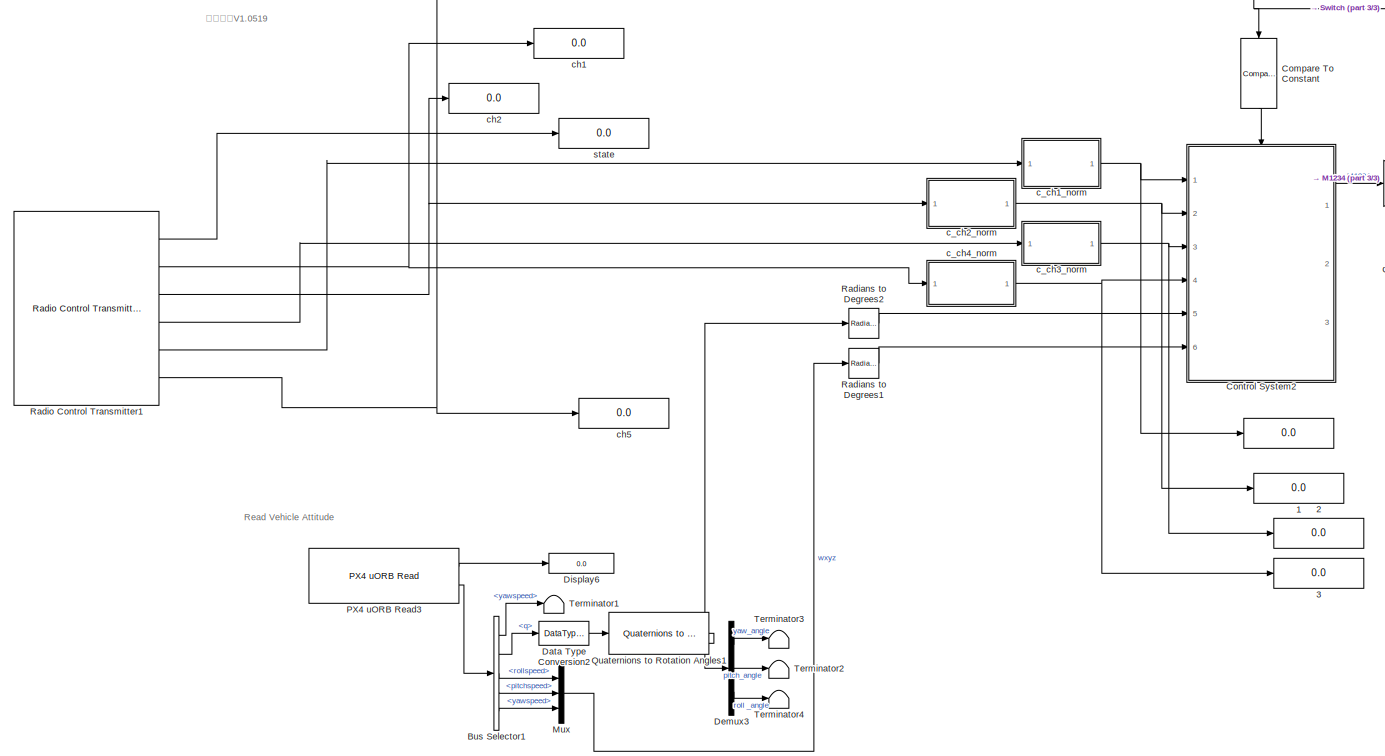
[diagram: root canvas - part 1/3, center side, full height]
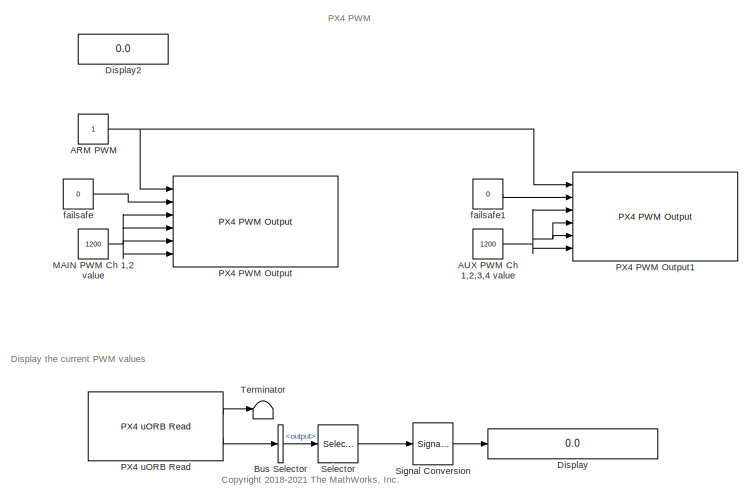
[diagram: root canvas - part 2/3, middle left region]
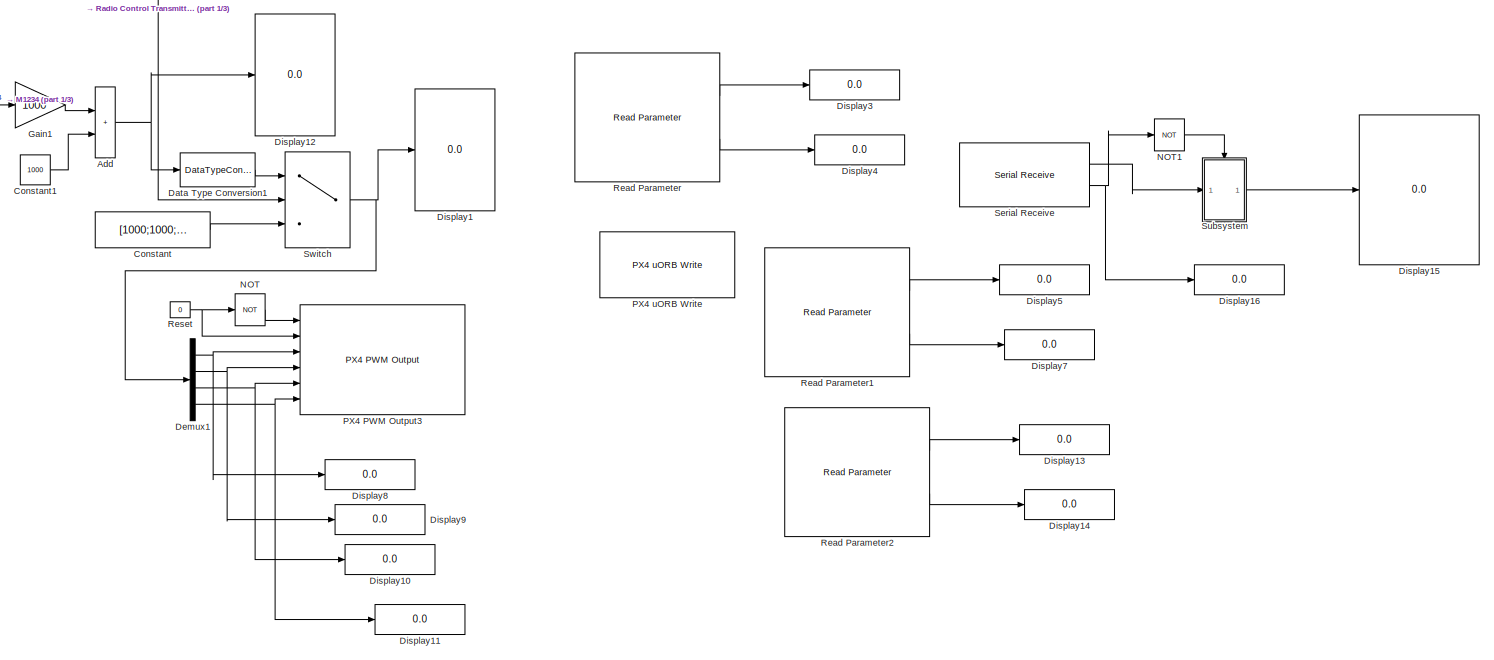
[diagram: root canvas - part 3/3, right side, full height]
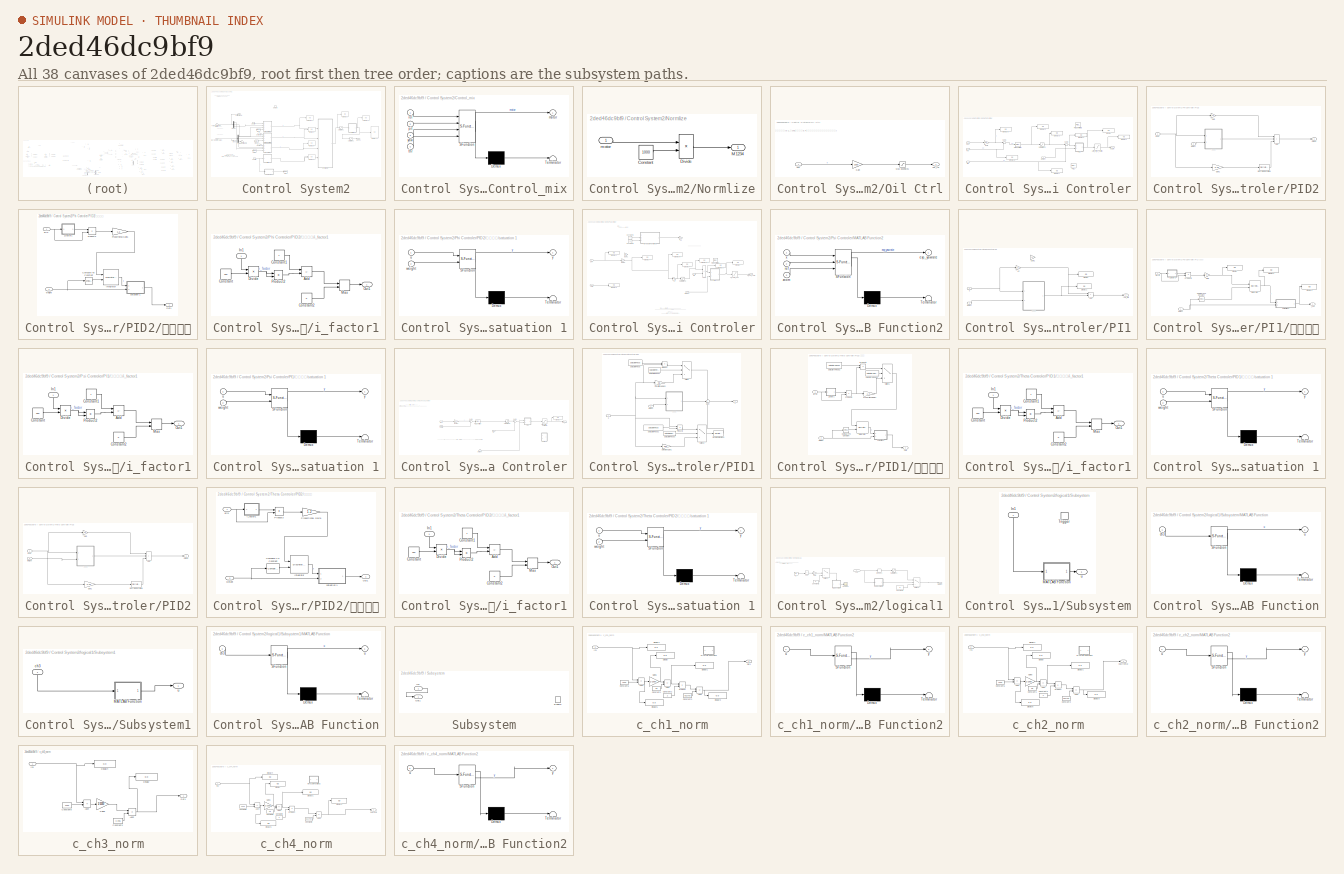
[diagram: thumbnail index - all 38 canvases of the model, root first then tree order]
MODEL slx_2ded46dc9bf9
KIND model
CONFIG AbsTol = auto
CONFIG EnableMultiTasking = on
CONFIG FixedStep = auto
CONFIG MaxStep = auto
CONFIG MinStep = auto
CONFIG RelTol = 1e-3
CONFIG SampleTimeConstraint = Unconstrained
CONFIG SolverName = FixedStepAuto
CONFIG StartTime = 0.0
CONFIG StopTime = inf
BLOCK [Display]   
  Decimation = 1
  Ports = [1]
BLOCK [Display]   1
  Decimation = 1
  Ports = [1]
BLOCK [Display]   2
  Decimation = 1
  Ports = [1]
BLOCK [Display]   3
  Decimation = 1
  Ports = [1]
BLOCK [Constant] ARM PWM
  Commented = on
  OutDataTypeStr = boolean
  SampleTime = 0.01
BLOCK [Constant] AUX PWM Ch 1,2,3,4 value
  Commented = on
  OutDataTypeStr = uint16
  SampleTime = 0.01
  Value = 1200
BLOCK [Sum] Add
  IconShape = rectangular
  Ports = [2, 1]
BLOCK [BusSelector] Bus Selector
  Commented = on
  OutputSignals = output
  Ports = [1, 1]
BLOCK [BusSelector] Bus Selector1
  OutputSignals = yawspeed,q,rollspeed,pitchspeed,yawspeed
  Ports = [1, 5]
BLOCK [Reference] Compare To Constant  REF=simulink/Logic and Bit
Operations/Compare
To Constant
  NameLocation = left
  Ports = [1, 1]
  SourceBlock = simulink/Logic and Bit\nOperations/Compare\nTo Constant
  SourceProductBaseCode = SL
  SourceType = Compare To Constant
BLOCK [Constant] Constant
  OutDataTypeStr = uint16
  Value = [1000;1000;1000;1000]
BLOCK [Constant] Constant1
  SampleTime = -1
  Value = 1000
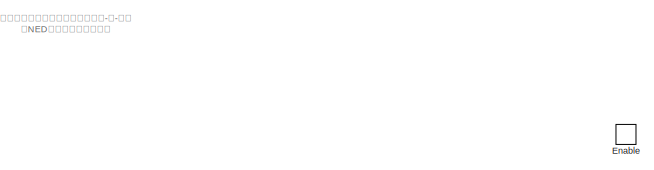
[diagram: Control System2 - part 1/5, top left region]
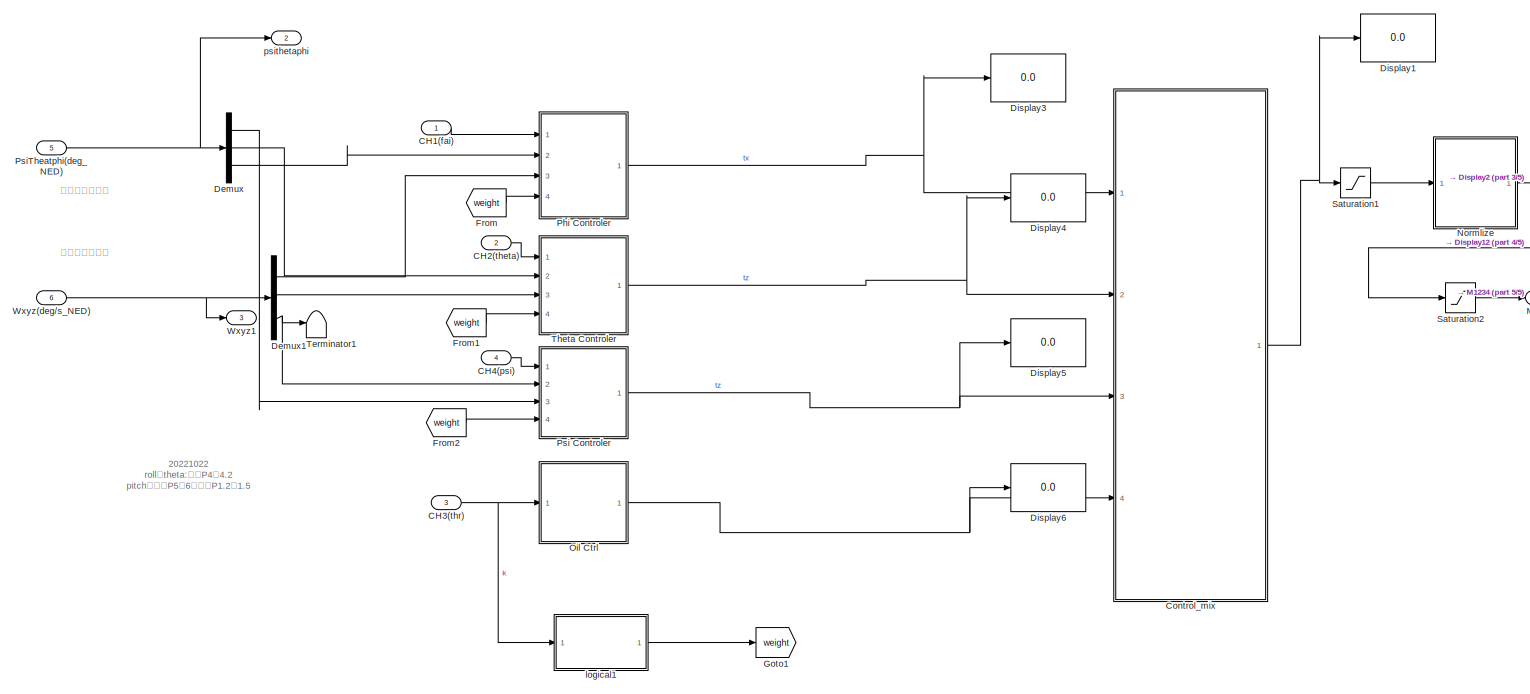
[diagram: Control System2 - part 2/5, most of the canvas]
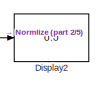
[diagram: Control System2 - part 3/5, top right region]
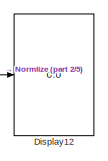
[diagram: Control System2 - part 4/5, middle right region]
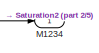
[diagram: Control System2 - part 5/5, middle right region]
BLOCK [SubSystem] Control System2
  Ports = [6, 3, 1]
  RequestExecContextInheritance = off
BLOCK [Inport] Control System2/CH1(fai)
BLOCK [Inport] Control System2/CH2(theta)
  Port = 2
BLOCK [Inport] Control System2/CH3(thr)
  Port = 3
BLOCK [Inport] Control System2/CH4(psi)
  Port = 4
BLOCK [SubSystem] Control System2/Control_mix
  ErrorFcn = Stateflow.Translate.translate
  PermitHierarchicalResolution = ExplicitOnly
  Ports = [4, 1]
  RequestExecContextInheritance = off
  SFBlockType = MATLAB Function
  TreatAsAtomicUnit = on
BLOCK [Demux] Control System2/Control_mix/ Demux 
  Outputs = 1
  Ports = [1, 1]
BLOCK [S-Function] Control System2/Control_mix/ SFunction 
  EnableBusSupport = on
  FunctionName = sf_sfun
  PortCounts = [4 2]
  Ports = [4, 2]
  SFcnIsStateOwnerBlock = off
  SFunctionDeploymentMode = off
  Tag = Stateflow S-Function 6
BLOCK [Terminator] Control System2/Control_mix/ Terminator 
BLOCK [Outport] Control System2/Control_mix/motor
BLOCK [Inport] Control System2/Control_mix/pit
  Port = 2
BLOCK [Inport] Control System2/Control_mix/rol
BLOCK [Inport] Control System2/Control_mix/thr
  Port = 4
BLOCK [Inport] Control System2/Control_mix/yaw
  Port = 3
BLOCK [Demux] Control System2/Demux
  Outputs = 3
  Ports = [1, 3]
BLOCK [Demux] Control System2/Demux1
  Outputs = 3
  Ports = [1, 3]
BLOCK [Display] Control System2/Display1
  Decimation = 1
  Ports = [1]
BLOCK [Display] Control System2/Display12
  Decimation = 1
  Ports = [1]
BLOCK [Display] Control System2/Display2
  Decimation = 1
  Ports = [1]
BLOCK [Display] Control System2/Display3
  Decimation = 1
  Ports = [1]
BLOCK [Display] Control System2/Display4
  Decimation = 1
  Ports = [1]
BLOCK [Display] Control System2/Display5
  Decimation = 1
  Ports = [1]
BLOCK [Display] Control System2/Display6
  Decimation = 1
  Ports = [1]
BLOCK [EnablePort] Control System2/Enable
  Ports = []
BLOCK [From] Control System2/From
  GotoTag = weight
BLOCK [From] Control System2/From1
  GotoTag = weight
BLOCK [From] Control System2/From2
  GotoTag = weight
BLOCK [Goto] Control System2/Goto1
  GotoTag = weight
BLOCK [Outport] Control System2/M1234
BLOCK [SubSystem] Control System2/Normlize
  Ports = [1, 1]
  RequestExecContextInheritance = off
BLOCK [Constant] Control System2/Normlize/Constant
  Value = 1000
BLOCK [Product] Control System2/Normlize/Divide
  Inputs = */
  Ports = [2, 1]
BLOCK [Outport] Control System2/Normlize/M1234
BLOCK [Inport] Control System2/Normlize/motor
BLOCK [SubSystem] Control System2/Oil Ctrl
  Ports = [1, 1]
  RequestExecContextInheritance = off
BLOCK [Inport] Control System2/Oil Ctrl/Ch3
BLOCK [Gain] Control System2/Oil Ctrl/Gain
  Gain = 1000
BLOCK [Saturate] Control System2/Oil Ctrl/Max ExpRate1
  LowerLimit = 0
  UpperLimit = 1000
BLOCK [Outport] Control System2/Oil Ctrl/out_thr
BLOCK [SubSystem] Control System2/Phi Controler
  Ports = [4, 1]
  RequestExecContextInheritance = off
BLOCK [Inport] Control System2/Phi Controler/Ch1
BLOCK [Display] Control System2/Phi Controler/Display
  Decimation = 1
  Ports = [1]
BLOCK [Display] Control System2/Phi Controler/Display1
  Decimation = 1
  Ports = [1]
BLOCK [Display] Control System2/Phi Controler/Display2
  Decimation = 1
  Ports = [1]
BLOCK [Display] Control System2/Phi Controler/Display3
  Decimation = 1
  Ports = [1]
BLOCK [Display] Control System2/Phi Controler/Display4
  Decimation = 1
  Ports = [1]
BLOCK [Display] Control System2/Phi Controler/Display5
  Decimation = 1
  Ports = [1]
BLOCK [Display] Control System2/Phi Controler/Display6
  Decimation = 1
  Ports = [1]
BLOCK [Display] Control System2/Phi Controler/Display7
  Decimation = 1
  Ports = [1]
BLOCK [Inport] Control System2/Phi Controler/Fai
  Port = 2
BLOCK [Saturate] Control System2/Phi Controler/Limt_ctrl_1_out.roll
  LowerLimit = -1000
  UpperLimit = 1000
BLOCK [Reference] Control System2/Phi Controler/PID Controller  REF=slpidlib/PID Controller
  Ports = [1, 1]
  SourceBlock = slpidlib/PID Controller
  SourceProductBaseCode = SL
  SourceType = PID 1dof
BLOCK [Reference] Control System2/Phi Controler/PID Controller2  REF=slpidlib/PID Controller
  Commented = on
  Ports = [1, 1]
  SourceBlock = slpidlib/PID Controller
  SourceProductBaseCode = SL
  SourceType = PID 1dof
BLOCK [Reference] Control System2/Phi Controler/PID1  REF=slpidlib/PID Controller
  Commented = on
  Ports = [1, 1]
  SourceBlock = slpidlib/PID Controller
  SourceProductBaseCode = SL
  SourceType = PID 1dof
BLOCK [SubSystem] Control System2/Phi Controler/PID2
  Ports = [2, 1]
  RequestExecContextInheritance = off
BLOCK [Sum] Control System2/Phi Controler/PID2/Add
  IconShape = rectangular
  Inputs = +++
  Ports = [3, 1]
BLOCK [Reference] Control System2/Phi Controler/PID2/Discrete Derivative  REF=simulink/Discrete/Discrete Derivative
  Ports = [1, 1]
  SourceBlock = simulink/Discrete/Discrete Derivative
  SourceProductBaseCode = SL
  SourceType = Discrete Derivative
BLOCK [Gain] Control System2/Phi Controler/PID2/Gain
  Gain = 0.8
BLOCK [Gain] Control System2/Phi Controler/PID2/Gain1
  Gain = 0.03
BLOCK [Inport] Control System2/Phi Controler/PID2/Input
BLOCK [Outport] Control System2/Phi Controler/PID2/Output
BLOCK [Inport] Control System2/Phi Controler/PID2/weight
  Port = 2
BLOCK [SubSystem] Control System2/Phi Controler/PID2/积分限幅
  Ports = [2, 1]
  RequestExecContextInheritance = off
BLOCK [Reference] Control System2/Phi Controler/PID2/积分限幅/Compare To Constant  REF=simulink/Logic and Bit
Operations/Compare
To Constant
  Ports = [1, 1]
  SourceBlock = simulink/Logic and Bit\nOperations/Compare\nTo Constant
  SourceProductBaseCode = SL
  SourceType = Compare To Constant
BLOCK [DiscreteIntegrator] Control System2/Phi Controler/PID2/积分限幅/Integrator
  ExternalReset = level
  ICPrevOutput = DiscIntNeverNeededParam
  ICPrevScaledInput = DiscIntNeverNeededParam
  InitialConditionSetting = Auto
  Ports = [2, 1]
  SampleTime = -1
BLOCK [Outport] Control System2/Phi Controler/PID2/积分限幅/Out1
BLOCK [Product] Control System2/Phi Controler/PID2/积分限幅/Product3
  Ports = [2, 1]
BLOCK [Gain] Control System2/Phi Controler/PID2/积分限幅/Proportional Gain1
  Gain = 1.2
BLOCK [Inport] Control System2/Phi Controler/PID2/积分限幅/erro
BLOCK [SubSystem] Control System2/Phi Controler/PID2/积分限幅/i_factor1
  Ports = [1, 1]
  RequestExecContextInheritance = off
BLOCK [Sum] Control System2/Phi Controler/PID2/积分限幅/i_factor1/Add
  IconShape = rectangular
  Inputs = +-
  Ports = [2, 1]
BLOCK [Constant] Control System2/Phi Controler/PID2/积分限幅/i_factor1/Constant
  Value = 150
BLOCK [Constant] Control System2/Phi Controler/PID2/积分限幅/i_factor1/Constant1
BLOCK [Constant] Control System2/Phi Controler/PID2/积分限幅/i_factor1/Constant2
  Value = 0
BLOCK [Product] Control System2/Phi Controler/PID2/积分限幅/i_factor1/Divide
  Inputs = */
  Ports = [2, 1]
BLOCK [Inport] Control System2/Phi Controler/PID2/积分限幅/i_factor1/In1
  NameLocation = right
BLOCK [MinMax] Control System2/Phi Controler/PID2/积分限幅/i_factor1/Max
  Function = max
  Inputs = 2
  Ports = [2, 1]
BLOCK [Outport] Control System2/Phi Controler/PID2/积分限幅/i_factor1/Out1
BLOCK [Product] Control System2/Phi Controler/PID2/积分限幅/i_factor1/Product2
  Ports = [2, 1]
BLOCK [SubSystem] Control System2/Phi Controler/PID2/积分限幅/satuation 1
  ErrorFcn = Stateflow.Translate.translate
  PermitHierarchicalResolution = ExplicitOnly
  Ports = [2, 1]
  RequestExecContextInheritance = off
  SFBlockType = MATLAB Function
  TreatAsAtomicUnit = on
BLOCK [Demux] Control System2/Phi Controler/PID2/积分限幅/satuation 1/ Demux 
  Outputs = 1
  Ports = [1, 1]
BLOCK [S-Function] Control System2/Phi Controler/PID2/积分限幅/satuation 1/ SFunction 
  EnableBusSupport = on
  FunctionName = sf_sfun
  PortCounts = [2 2]
  Ports = [2, 2]
  SFcnIsStateOwnerBlock = off
  SFunctionDeploymentMode = off
  Tag = Stateflow S-Function 4
BLOCK [Terminator] Control System2/Phi Controler/PID2/积分限幅/satuation 1/ Terminator 
BLOCK [Inport] Control System2/Phi Controler/PID2/积分限幅/satuation 1/u
BLOCK [Inport] Control System2/Phi Controler/PID2/积分限幅/satuation 1/weight
  Port = 2
BLOCK [Outport] Control System2/Phi Controler/PID2/积分限幅/satuation 1/y
BLOCK [Inport] Control System2/Phi Controler/PID2/积分限幅/weight
  Port = 2
BLOCK [Gain] Control System2/Phi Controler/Roll1
  Gain = 35
BLOCK [Saturate] Control System2/Phi Controler/Saturation3
  LowerLimit = -300
  UpperLimit = 300
BLOCK [Sum] Control System2/Phi Controler/Sum1
  Inputs = |+-
  Ports = [2, 1]
BLOCK [Sum] Control System2/Phi Controler/Sum2
  Inputs = |+-
  Ports = [2, 1]
BLOCK [Inport] Control System2/Phi Controler/Wx
  Port = 3
BLOCK [Outport] Control System2/Phi Controler/out_rol
BLOCK [Inport] Control System2/Phi Controler/weight
  Port = 4
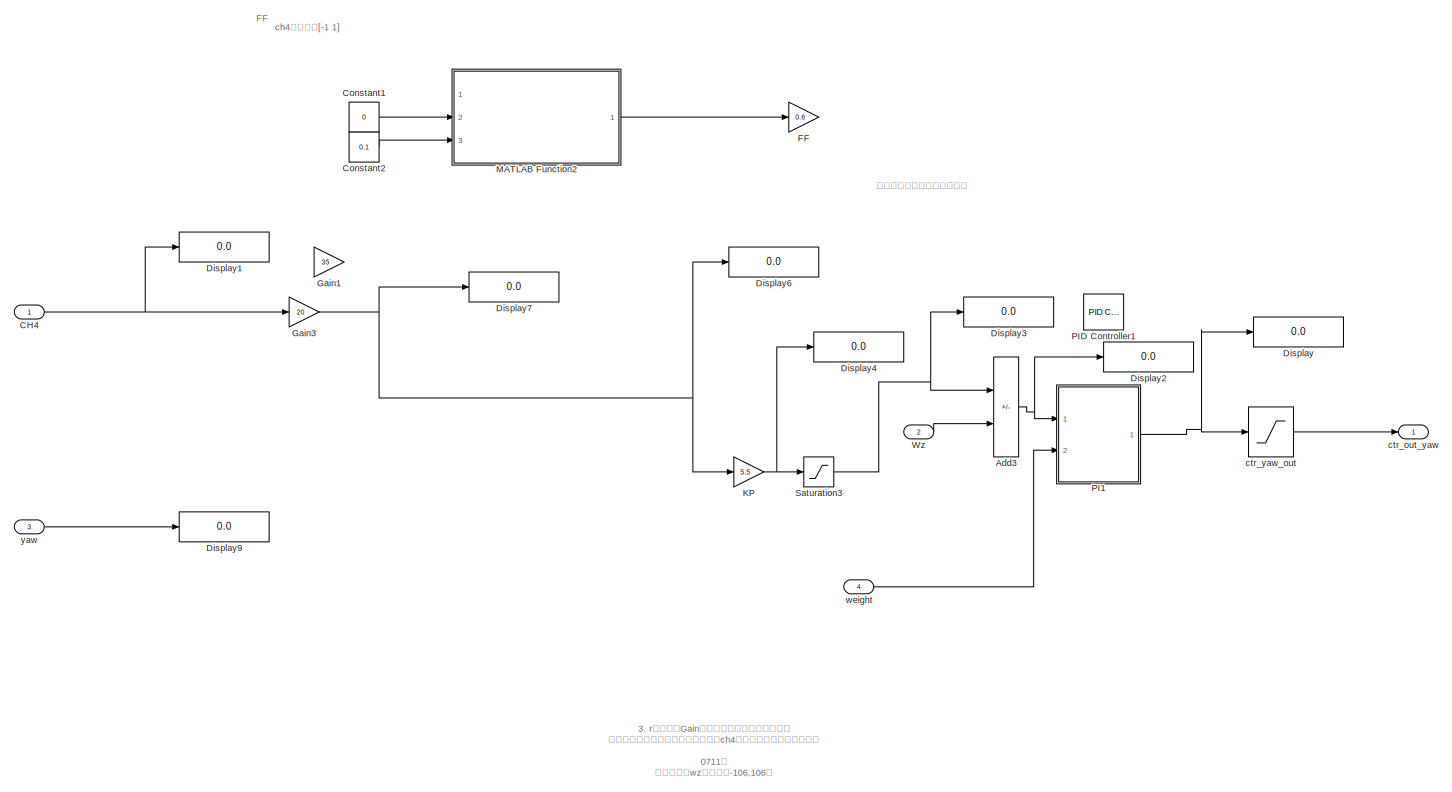
[diagram: Control System2/Psi Controler - part 1/1, most of the canvas]
BLOCK [SubSystem] Control System2/Psi Controler
  Ports = [4, 1]
  RequestExecContextInheritance = off
BLOCK [Sum] Control System2/Psi Controler/Add3
  IconShape = rectangular
  Inputs = +-
  Ports = [2, 1]
BLOCK [Inport] Control System2/Psi Controler/CH4
BLOCK [Constant] Control System2/Psi Controler/Constant1
  Commented = on
  Value = 0
BLOCK [Constant] Control System2/Psi Controler/Constant2
  Commented = on
  Value = 0.1
BLOCK [Display] Control System2/Psi Controler/Display
  Decimation = 1
  Ports = [1]
BLOCK [Display] Control System2/Psi Controler/Display1
  Decimation = 1
  Ports = [1]
BLOCK [Display] Control System2/Psi Controler/Display2
  Decimation = 1
  Ports = [1]
BLOCK [Display] Control System2/Psi Controler/Display3
  Decimation = 1
  Ports = [1]
BLOCK [Display] Control System2/Psi Controler/Display4
  Decimation = 1
  Ports = [1]
BLOCK [Display] Control System2/Psi Controler/Display6
  Decimation = 1
  Ports = [1]
BLOCK [Display] Control System2/Psi Controler/Display7
  Decimation = 1
  Ports = [1]
BLOCK [Display] Control System2/Psi Controler/Display9
  Decimation = 1
  Ports = [1]
BLOCK [Gain] Control System2/Psi Controler/FF
  Commented = on
  Gain = 0.6
BLOCK [Gain] Control System2/Psi Controler/Gain1
  Commented = on
  Gain = 35
BLOCK [Gain] Control System2/Psi Controler/Gain3
  Gain = 20
BLOCK [Gain] Control System2/Psi Controler/KP
  Gain = 5.5
BLOCK [SubSystem] Control System2/Psi Controler/MATLAB Function2
  Commented = on
  ErrorFcn = Stateflow.Translate.translate
  PermitHierarchicalResolution = ExplicitOnly
  Ports = [3, 1]
  RequestExecContextInheritance = off
  SFBlockType = MATLAB Function
  TreatAsAtomicUnit = on
BLOCK [Demux] Control System2/Psi Controler/MATLAB Function2/ Demux 
  Outputs = 1
  Ports = [1, 1]
BLOCK [S-Function] Control System2/Psi Controler/MATLAB Function2/ SFunction 
  EnableBusSupport = on
  FunctionName = sf_sfun
  PortCounts = [3 2]
  Ports = [3, 2]
  SFcnIsStateOwnerBlock = off
  SFunctionDeploymentMode = off
  Tag = Stateflow S-Function 9
BLOCK [Terminator] Control System2/Psi Controler/MATLAB Function2/ Terminator 
BLOCK [Outport] Control System2/Psi Controler/MATLAB Function2/exp_yawrate
BLOCK [Inport] Control System2/Psi Controler/MATLAB Function2/ref
  Port = 2
BLOCK [Inport] Control System2/Psi Controler/MATLAB Function2/x
BLOCK [Inport] Control System2/Psi Controler/MATLAB Function2/zoom
  Port = 3
BLOCK [SubSystem] Control System2/Psi Controler/PI1
  Ports = [2, 1]
  RequestExecContextInheritance = off
BLOCK [Sum] Control System2/Psi Controler/PI1/Add
  IconShape = rectangular
  Ports = [2, 1]
BLOCK [Display] Control System2/Psi Controler/PI1/Display
  Decimation = 1
  Ports = [1]
BLOCK [Display] Control System2/Psi Controler/PI1/Display1
  Decimation = 1
  Ports = [1]
BLOCK [Gain] Control System2/Psi Controler/PI1/Gain1
  Commented = on
  Gain = 1.4
  RndMeth = Nearest
BLOCK [Gain] Control System2/Psi Controler/PI1/KP
  Gain = 1.4
BLOCK [Inport] Control System2/Psi Controler/PI1/u
BLOCK [Inport] Control System2/Psi Controler/PI1/weight
  Port = 2
BLOCK [Outport] Control System2/Psi Controler/PI1/yaw_rate
BLOCK [SubSystem] Control System2/Psi Controler/PI1/积分限幅
  Ports = [2, 1]
  RequestExecContextInheritance = off
BLOCK [Reference] Control System2/Psi Controler/PI1/积分限幅/Compare To Constant  REF=simulink/Logic and Bit
Operations/Compare
To Constant
  Ports = [1, 1]
  SourceBlock = simulink/Logic and Bit\nOperations/Compare\nTo Constant
  SourceProductBaseCode = SL
  SourceType = Compare To Constant
BLOCK [Display] Control System2/Psi Controler/PI1/积分限幅/Display
  Decimation = 1
  Ports = [1]
BLOCK [Display] Control System2/Psi Controler/PI1/积分限幅/Display1
  Decimation = 1
  Ports = [1]
BLOCK [Display] Control System2/Psi Controler/PI1/积分限幅/Display2
  Decimation = 1
  Ports = [1]
BLOCK [Gain] Control System2/Psi Controler/PI1/积分限幅/Gain
  Gain = 0.7
BLOCK [Outport] Control System2/Psi Controler/PI1/积分限幅/I_out
BLOCK [DiscreteIntegrator] Control System2/Psi Controler/PI1/积分限幅/Integrator
  ExternalReset = level
  ICPrevOutput = DiscIntNeverNeededParam
  ICPrevScaledInput = DiscIntNeverNeededParam
  InitialConditionSetting = Auto
  Ports = [2, 1]
  SampleTime = -1
BLOCK [Product] Control System2/Psi Controler/PI1/积分限幅/Product3
  Ports = [2, 1]
BLOCK [Inport] Control System2/Psi Controler/PI1/积分限幅/erro
  Port = 2
BLOCK [SubSystem] Control System2/Psi Controler/PI1/积分限幅/i_factor1
  Ports = [1, 1]
  RequestExecContextInheritance = off
BLOCK [Sum] Control System2/Psi Controler/PI1/积分限幅/i_factor1/Add
  IconShape = rectangular
  Inputs = +-
  Ports = [2, 1]
BLOCK [Constant] Control System2/Psi Controler/PI1/积分限幅/i_factor1/Constant
  Value = 250
BLOCK [Constant] Control System2/Psi Controler/PI1/积分限幅/i_factor1/Constant1
BLOCK [Constant] Control System2/Psi Controler/PI1/积分限幅/i_factor1/Constant2
  Value = 0
BLOCK [Product] Control System2/Psi Controler/PI1/积分限幅/i_factor1/Divide
  Inputs = */
  Ports = [2, 1]
BLOCK [Inport] Control System2/Psi Controler/PI1/积分限幅/i_factor1/In1
  NameLocation = right
BLOCK [MinMax] Control System2/Psi Controler/PI1/积分限幅/i_factor1/Max
  Function = max
  Inputs = 2
  Ports = [2, 1]
BLOCK [Outport] Control System2/Psi Controler/PI1/积分限幅/i_factor1/Out1
BLOCK [Product] Control System2/Psi Controler/PI1/积分限幅/i_factor1/Product2
  Ports = [2, 1]
BLOCK [SubSystem] Control System2/Psi Controler/PI1/积分限幅/satuation 1
  ErrorFcn = Stateflow.Translate.translate
  PermitHierarchicalResolution = ExplicitOnly
  Ports = [2, 1]
  RequestExecContextInheritance = off
  SFBlockType = MATLAB Function
  TreatAsAtomicUnit = on
BLOCK [Demux] Control System2/Psi Controler/PI1/积分限幅/satuation 1/ Demux 
  Outputs = 1
  Ports = [1, 1]
BLOCK [S-Function] Control System2/Psi Controler/PI1/积分限幅/satuation 1/ SFunction 
  EnableBusSupport = on
  FunctionName = sf_sfun
  PortCounts = [2 2]
  Ports = [2, 2]
  SFcnIsStateOwnerBlock = off
  SFunctionDeploymentMode = off
  Tag = Stateflow S-Function 8
BLOCK [Terminator] Control System2/Psi Controler/PI1/积分限幅/satuation 1/ Terminator 
BLOCK [Inport] Control System2/Psi Controler/PI1/积分限幅/satuation 1/u
BLOCK [Inport] Control System2/Psi Controler/PI1/积分限幅/satuation 1/weight
  Port = 2
BLOCK [Outport] Control System2/Psi Controler/PI1/积分限幅/satuation 1/y
BLOCK [Inport] Control System2/Psi Controler/PI1/积分限幅/weight
BLOCK [Reference] Control System2/Psi Controler/PID Controller1  REF=slpidlib/PID Controller
  Commented = on
  Ports = [1, 1]
  SourceBlock = slpidlib/PID Controller
  SourceProductBaseCode = SL
  SourceType = PID 1dof
BLOCK [Saturate] Control System2/Psi Controler/Saturation3
  LowerLimit = -200
  UpperLimit = 200
BLOCK [Inport] Control System2/Psi Controler/Wz
  Port = 2
BLOCK [Outport] Control System2/Psi Controler/ctr_out_yaw
BLOCK [Saturate] Control System2/Psi Controler/ctr_yaw_out
  LowerLimit = -800
  UpperLimit = 800
BLOCK [Inport] Control System2/Psi Controler/weight
  Port = 4
BLOCK [Inport] Control System2/Psi Controler/yaw
  Port = 3
BLOCK [Inport] Control System2/PsiTheatphi(deg_NED)
  Port = 5
BLOCK [Saturate] Control System2/Saturation1
  LowerLimit = 0
  UpperLimit = 1000
BLOCK [Saturate] Control System2/Saturation2
  LowerLimit = 0
  UpperLimit = 1
BLOCK [Terminator] Control System2/Terminator1
BLOCK [SubSystem] Control System2/Theta Controler
  Ports = [4, 1]
  RequestExecContextInheritance = off
BLOCK [Inport] Control System2/Theta Controler/Ch2
BLOCK [Display] Control System2/Theta Controler/Display
  Decimation = 1
  Ports = [1]
BLOCK [Saturate] Control System2/Theta Controler/Limt_ctrl_1_out.theta
  LowerLimit = -1000
  UpperLimit = 1000
BLOCK [Reference] Control System2/Theta Controler/PID Controller  REF=slpidlib/PID Controller
  Ports = [1, 1]
  SourceBlock = slpidlib/PID Controller
  SourceProductBaseCode = SL
  SourceType = PID 1dof
BLOCK [SubSystem] Control System2/Theta Controler/PID1
  Commented = on
  Ports = [2, 1]
  RequestExecContextInheritance = off
BLOCK [DataStoreRead] Control System2/Theta Controler/PID1/Data Store Read
  Commented = on
  DataStoreName = k_p1_wxy
  IndexOptions = Index vector (dialog)
  Indices = 1
  OutputSizes = 1
  Ports = [0, 1]
BLOCK [DataStoreRead] Control System2/Theta Controler/PID1/Data Store Read1
  Commented = on
  DataStoreName = enable
  IndexOptions = Index vector (dialog)
  Indices = 1
  OutputSizes = 1
  Ports = [0, 1]
BLOCK [DataStoreRead] Control System2/Theta Controler/PID1/Data Store Read2
  Commented = on
  DataStoreName = k_d1_wxy
  IndexOptions = Index vector (dialog)
  Indices = 1
  OutputSizes = 1
  Ports = [0, 1]
BLOCK [DataStoreRead] Control System2/Theta Controler/PID1/Data Store Read3
  Commented = on
  DataStoreName = enable
  IndexOptions = Index vector (dialog)
  Indices = 1
  OutputSizes = 1
  Ports = [0, 1]
BLOCK [Gain] Control System2/Theta Controler/PID1/Derivative Gain1
  DisableCoverage = on
  Gain = 0.03
  SampleTime = dt
BLOCK [Reference] Control System2/Theta Controler/PID1/Discrete Derivative1  REF=simulink/Discrete/Discrete Derivative
  Ports = [1, 1]
  SourceBlock = simulink/Discrete/Discrete Derivative
  SourceProductBaseCode = SL
  SourceType = Discrete Derivative
BLOCK [Product] Control System2/Theta Controler/PID1/Product
  Commented = on
  Ports = [2, 1]
BLOCK [Product] Control System2/Theta Controler/PID1/Product1
  Commented = on
  Ports = [2, 1]
BLOCK [Gain] Control System2/Theta Controler/PID1/Proportional Gain2
  Gain = 0.8
  SampleTime = dt
BLOCK [Sum] Control System2/Theta Controler/PID1/Sum
  Inputs = +++
  Ports = [3, 1]
  SampleTime = dt
BLOCK [Switch] Control System2/Theta Controler/PID1/Switch
  Criteria = u2 > Threshold
  InputSameDT = off
  SaturateOnIntegerOverflow = off
  Threshold = 1
BLOCK [Switch] Control System2/Theta Controler/PID1/Switch1
  Criteria = u2 > Threshold
  InputSameDT = off
  SaturateOnIntegerOverflow = off
  Threshold = 1
BLOCK [Inport] Control System2/Theta Controler/PID1/u
  SampleTime = dt
BLOCK [Inport] Control System2/Theta Controler/PID1/weight 
  Port = 2
  SampleTime = dt
BLOCK [Outport] Control System2/Theta Controler/PID1/y
  InitialOutput = 0
  SampleTime = dt
BLOCK [SubSystem] Control System2/Theta Controler/PID1/积分限幅
  Ports = [2, 1]
  RequestExecContextInheritance = off
BLOCK [Reference] Control System2/Theta Controler/PID1/积分限幅/Compare To Constant  REF=simulink/Logic and Bit
Operations/Compare
To Constant
  Ports = [1, 1]
  SourceBlock = simulink/Logic and Bit\nOperations/Compare\nTo Constant
  SourceProductBaseCode = SL
  SourceType = Compare To Constant
BLOCK [DataStoreRead] Control System2/Theta Controler/PID1/积分限幅/Data Store Read2
  Commented = on
  DataStoreName = k_I1_wxy
  IndexOptions = Index vector (dialog)
  Indices = 1
  OutputSizes = 1
  Ports = [0, 1]
BLOCK [DataStoreRead] Control System2/Theta Controler/PID1/积分限幅/Data Store Read3
  Commented = on
  DataStoreName = enable
  IndexOptions = Index vector (dialog)
  Indices = 1
  OutputSizes = 1
  Ports = [0, 1]
BLOCK [DiscreteIntegrator] Control System2/Theta Controler/PID1/积分限幅/Integrator
  ExternalReset = level
  ICPrevOutput = DiscIntNeverNeededParam
  ICPrevScaledInput = DiscIntNeverNeededParam
  InitialConditionSetting = Auto
  Ports = [2, 1]
  SampleTime = -1
BLOCK [Outport] Control System2/Theta Controler/PID1/积分限幅/Out1
BLOCK [Product] Control System2/Theta Controler/PID1/积分限幅/Product1
  Commented = on
  Ports = [2, 1]
BLOCK [Product] Control System2/Theta Controler/PID1/积分限幅/Product3
  Ports = [2, 1]
BLOCK [Gain] Control System2/Theta Controler/PID1/积分限幅/Proportional Gain1
  Gain = 1.2
  SampleTime = dt
BLOCK [Switch] Control System2/Theta Controler/PID1/积分限幅/Switch1
  Criteria = u2 > Threshold
  InputSameDT = off
  SaturateOnIntegerOverflow = off
  Threshold = 1
BLOCK [Inport] Control System2/Theta Controler/PID1/积分限幅/erro
BLOCK [SubSystem] Control System2/Theta Controler/PID1/积分限幅/i_factor1
  Ports = [1, 1]
  RequestExecContextInheritance = off
BLOCK [Sum] Control System2/Theta Controler/PID1/积分限幅/i_factor1/Add
  IconShape = rectangular
  Inputs = +-
  Ports = [2, 1]
BLOCK [Constant] Control System2/Theta Controler/PID1/积分限幅/i_factor1/Constant
  Value = 150
BLOCK [Constant] Control System2/Theta Controler/PID1/积分限幅/i_factor1/Constant1
BLOCK [Constant] Control System2/Theta Controler/PID1/积分限幅/i_factor1/Constant2
  Value = 0
BLOCK [Product] Control System2/Theta Controler/PID1/积分限幅/i_factor1/Divide
  Inputs = */
  Ports = [2, 1]
BLOCK [Inport] Control System2/Theta Controler/PID1/积分限幅/i_factor1/In1
  NameLocation = right
BLOCK [MinMax] Control System2/Theta Controler/PID1/积分限幅/i_factor1/Max
  Function = max
  Inputs = 2
  Ports = [2, 1]
BLOCK [Outport] Control System2/Theta Controler/PID1/积分限幅/i_factor1/Out1
BLOCK [Product] Control System2/Theta Controler/PID1/积分限幅/i_factor1/Product2
  Ports = [2, 1]
BLOCK [SubSystem] Control System2/Theta Controler/PID1/积分限幅/satuation 1
  ErrorFcn = Stateflow.Translate.translate
  PermitHierarchicalResolution = ExplicitOnly
  Ports = [2, 1]
  RequestExecContextInheritance = off
  SFBlockType = MATLAB Function
  TreatAsAtomicUnit = on
BLOCK [Demux] Control System2/Theta Controler/PID1/积分限幅/satuation 1/ Demux 
  Outputs = 1
  Ports = [1, 1]
BLOCK [S-Function] Control System2/Theta Controler/PID1/积分限幅/satuation 1/ SFunction 
  EnableBusSupport = on
  FunctionName = sf_sfun
  PortCounts = [2 2]
  Ports = [2, 2]
  SFcnIsStateOwnerBlock = off
  SFunctionDeploymentMode = off
  Tag = Stateflow S-Function 2
BLOCK [Terminator] Control System2/Theta Controler/PID1/积分限幅/satuation 1/ Terminator 
BLOCK [Inport] Control System2/Theta Controler/PID1/积分限幅/satuation 1/u
BLOCK [Inport] Control System2/Theta Controler/PID1/积分限幅/satuation 1/weight
  Port = 2
BLOCK [Outport] Control System2/Theta Controler/PID1/积分限幅/satuation 1/y
BLOCK [Inport] Control System2/Theta Controler/PID1/积分限幅/weight 
  Port = 2
  SampleTime = dt
BLOCK [SubSystem] Control System2/Theta Controler/PID2
  Ports = [2, 1]
  RequestExecContextInheritance = off
BLOCK [Sum] Control System2/Theta Controler/PID2/Add
  IconShape = rectangular
  Inputs = +++
  Ports = [3, 1]
BLOCK [Reference] Control System2/Theta Controler/PID2/Discrete Derivative  REF=simulink/Discrete/Discrete Derivative
  Ports = [1, 1]
  SourceBlock = simulink/Discrete/Discrete Derivative
  SourceProductBaseCode = SL
  SourceType = Discrete Derivative
BLOCK [Gain] Control System2/Theta Controler/PID2/Gain
  Gain = 0.8
BLOCK [Gain] Control System2/Theta Controler/PID2/Gain1
  Gain = 0.03
BLOCK [Inport] Control System2/Theta Controler/PID2/Input
BLOCK [Outport] Control System2/Theta Controler/PID2/Output
BLOCK [Inport] Control System2/Theta Controler/PID2/weight
  Port = 2
BLOCK [SubSystem] Control System2/Theta Controler/PID2/积分限幅
  Ports = [2, 1]
  RequestExecContextInheritance = off
BLOCK [Reference] Control System2/Theta Controler/PID2/积分限幅/Compare To Constant  REF=simulink/Logic and Bit
Operations/Compare
To Constant
  Ports = [1, 1]
  SourceBlock = simulink/Logic and Bit\nOperations/Compare\nTo Constant
  SourceProductBaseCode = SL
  SourceType = Compare To Constant
BLOCK [DiscreteIntegrator] Control System2/Theta Controler/PID2/积分限幅/Integrator
  ExternalReset = level
  ICPrevOutput = DiscIntNeverNeededParam
  ICPrevScaledInput = DiscIntNeverNeededParam
  InitialConditionSetting = Auto
  Ports = [2, 1]
  SampleTime = -1
BLOCK [Outport] Control System2/Theta Controler/PID2/积分限幅/Out1
BLOCK [Product] Control System2/Theta Controler/PID2/积分限幅/Product3
  Ports = [2, 1]
BLOCK [Gain] Control System2/Theta Controler/PID2/积分限幅/Proportional Gain1
  Gain = 1.2
BLOCK [Inport] Control System2/Theta Controler/PID2/积分限幅/erro
BLOCK [SubSystem] Control System2/Theta Controler/PID2/积分限幅/i_factor1
  Ports = [1, 1]
  RequestExecContextInheritance = off
BLOCK [Sum] Control System2/Theta Controler/PID2/积分限幅/i_factor1/Add
  IconShape = rectangular
  Inputs = +-
  Ports = [2, 1]
BLOCK [Constant] Control System2/Theta Controler/PID2/积分限幅/i_factor1/Constant
  Value = 150
BLOCK [Constant] Control System2/Theta Controler/PID2/积分限幅/i_factor1/Constant1
BLOCK [Constant] Control System2/Theta Controler/PID2/积分限幅/i_factor1/Constant2
  Value = 0
BLOCK [Product] Control System2/Theta Controler/PID2/积分限幅/i_factor1/Divide
  Inputs = */
  Ports = [2, 1]
BLOCK [Inport] Control System2/Theta Controler/PID2/积分限幅/i_factor1/In1
  NameLocation = right
BLOCK [MinMax] Control System2/Theta Controler/PID2/积分限幅/i_factor1/Max
  Function = max
  Inputs = 2
  Ports = [2, 1]
BLOCK [Outport] Control System2/Theta Controler/PID2/积分限幅/i_factor1/Out1
BLOCK [Product] Control System2/Theta Controler/PID2/积分限幅/i_factor1/Product2
  Ports = [2, 1]
BLOCK [SubSystem] Control System2/Theta Controler/PID2/积分限幅/satuation 1
  ErrorFcn = Stateflow.Translate.translate
  PermitHierarchicalResolution = ExplicitOnly
  Ports = [2, 1]
  RequestExecContextInheritance = off
  SFBlockType = MATLAB Function
  TreatAsAtomicUnit = on
BLOCK [Demux] Control System2/Theta Controler/PID2/积分限幅/satuation 1/ Demux 
  Outputs = 1
  Ports = [1, 1]
BLOCK [S-Function] Control System2/Theta Controler/PID2/积分限幅/satuation 1/ SFunction 
  EnableBusSupport = on
  FunctionName = sf_sfun
  PortCounts = [2 2]
  Ports = [2, 2]
  SFcnIsStateOwnerBlock = off
  SFunctionDeploymentMode = off
  Tag = Stateflow S-Function 7
BLOCK [Terminator] Control System2/Theta Controler/PID2/积分限幅/satuation 1/ Terminator 
BLOCK [Inport] Control System2/Theta Controler/PID2/积分限幅/satuation 1/u
BLOCK [Inport] Control System2/Theta Controler/PID2/积分限幅/satuation 1/weight
  Port = 2
BLOCK [Outport] Control System2/Theta Controler/PID2/积分限幅/satuation 1/y
BLOCK [Inport] Control System2/Theta Controler/PID2/积分限幅/weight
  Port = 2
BLOCK [Saturate] Control System2/Theta Controler/Saturation3
  LowerLimit = -300
  UpperLimit = 300
BLOCK [Sum] Control System2/Theta Controler/Sum1
  Inputs = |+-
  Ports = [2, 1]
BLOCK [Sum] Control System2/Theta Controler/Sum2
  Inputs = |+-
  Ports = [2, 1]
BLOCK [Inport] Control System2/Theta Controler/Theta
  Port = 2
BLOCK [Inport] Control System2/Theta Controler/Wy
  Port = 3
BLOCK [Outport] Control System2/Theta Controler/out_pit
BLOCK [Gain] Control System2/Theta Controler/theta 2
  Gain = 35
BLOCK [Inport] Control System2/Theta Controler/weight
  Port = 4
BLOCK [Inport] Control System2/Wxyz(deg//s_NED)
  Port = 6
BLOCK [Outport] Control System2/Wxyz1
  Port = 3
BLOCK [SubSystem] Control System2/logical1
  Ports = [1, 1]
  RequestExecContextInheritance = off
BLOCK [Sum] Control System2/logical1/Add
  Commented = on
  IconShape = rectangular
  Ports = [2, 1]
BLOCK [Constant] Control System2/logical1/Constant2
  Commented = on
  Value = 0
BLOCK [Constant] Control System2/logical1/Constant4
  Value = 0
BLOCK [Gain] Control System2/logical1/Gain
  Commented = on
  Gain = -1
BLOCK [Memory] Control System2/logical1/Memory1
  NameLocation = top
BLOCK [Saturate] Control System2/logical1/Saturation1
  LowerLimit = 0
  UpperLimit = 1
BLOCK [Scope] Control System2/logical1/Scope1
  Commented = on
  Floating = off
  NumInputPorts = 1
  Ports = [1]
  ScopeSpecificationString = Simulink.scopes.TimeScopeBlockCfg('CurrentConfiguration', extmgr.ConfigurationSet(extmgr.Configuration('Core','General UI',true),extmgr.Configuration('Core','Source UI',true),extmgr.Configuration('Sources','WiredSimulink',true,'DataLoggingVariableName','ScopeData6'),extmgr.Configuration('Visuals','Time Domain',true,'SerializedDisplays',{struct('MinYLimReal','-0.125','MaxYLimReal','1.125','YLabelRe...<+1455ch>
BLOCK [SubSystem] Control System2/logical1/Subsystem
  Commented = on
  Ports = [1, 1, 0, 1]
  RequestExecContextInheritance = off
BLOCK [Inport] Control System2/logical1/Subsystem/In1
  NameLocation = right
BLOCK [SubSystem] Control System2/logical1/Subsystem/MATLAB Function
  ErrorFcn = Stateflow.Translate.translate
  PermitHierarchicalResolution = ExplicitOnly
  Ports = [1, 1]
  RequestExecContextInheritance = off
  SFBlockType = MATLAB Function
  TreatAsAtomicUnit = on
BLOCK [Demux] Control System2/logical1/Subsystem/MATLAB Function/ Demux 
  Outputs = 1
  Ports = [1, 1]
BLOCK [S-Function] Control System2/logical1/Subsystem/MATLAB Function/ SFunction 
  EnableBusSupport = on
  FunctionName = sf_sfun
  PortCounts = [1 2]
  Ports = [1, 2]
  SFcnIsStateOwnerBlock = off
  SFunctionDeploymentMode = off
  Tag = Stateflow S-Function 10
BLOCK [Terminator] Control System2/logical1/Subsystem/MATLAB Function/ Terminator 
BLOCK [Inport] Control System2/logical1/Subsystem/MATLAB Function/ch3
BLOCK [Outport] Control System2/logical1/Subsystem/MATLAB Function/u
BLOCK [TriggerPort] Control System2/logical1/Subsystem/Trigger
  PortDimensions = 1
  Ports = []
  StatesWhenEnabling = held
  VariantControl = Variant
BLOCK [Outport] Control System2/logical1/Subsystem/u
BLOCK [SubSystem] Control System2/logical1/Subsystem1
  Ports = [1, 1]
  RequestExecContextInheritance = off
BLOCK [SubSystem] Control System2/logical1/Subsystem1/MATLAB Function
  ErrorFcn = Stateflow.Translate.translate
  PermitHierarchicalResolution = ExplicitOnly
  Ports = [1, 1]
  RequestExecContextInheritance = off
  SFBlockType = MATLAB Function
  TreatAsAtomicUnit = on
BLOCK [Demux] Control System2/logical1/Subsystem1/MATLAB Function/ Demux 
  Outputs = 1
  Ports = [1, 1]
BLOCK [S-Function] Control System2/logical1/Subsystem1/MATLAB Function/ SFunction 
  EnableBusSupport = on
  FunctionName = sf_sfun
  PortCounts = [1 2]
  Ports = [1, 2]
  SFcnIsStateOwnerBlock = off
  SFunctionDeploymentMode = off
  Tag = Stateflow S-Function 11
BLOCK [Terminator] Control System2/logical1/Subsystem1/MATLAB Function/ Terminator 
BLOCK [Inport] Control System2/logical1/Subsystem1/MATLAB Function/ch3
BLOCK [Outport] Control System2/logical1/Subsystem1/MATLAB Function/u
BLOCK [Inport] Control System2/logical1/Subsystem1/ch3
  NameLocation = right
BLOCK [Outport] Control System2/logical1/Subsystem1/u
BLOCK [Switch] Control System2/logical1/Switch1
  Commented = on
  Criteria = u2 > Threshold
  InputSameDT = off
  SaturateOnIntegerOverflow = off
BLOCK [Switch] Control System2/logical1/Switch2
  Criteria = u2 > Threshold
  InputSameDT = off
  SaturateOnIntegerOverflow = off
BLOCK [Inport] Control System2/logical1/ch3
  NameLocation = top
BLOCK [Constant] Control System2/logical1/g
  Commented = on
  Value = 9.5
BLOCK [Outport] Control System2/logical1/weight
BLOCK [Outport] Control System2/psithetaphi
  Port = 2
BLOCK [DataTypeConversion] Data Type Conversion1
  OutDataTypeStr = uint16
  RndMeth = Floor
  SaturateOnIntegerOverflow = off
BLOCK [DataTypeConversion] Data Type Conversion2
  OutDataTypeStr = double
  RndMeth = Floor
  SaturateOnIntegerOverflow = off
BLOCK [Demux] Demux1
  Ports = [1, 4]
BLOCK [Demux] Demux3
  Outputs = 3
  Ports = [1, 3]
BLOCK [Display] Display
  Commented = on
  Decimation = 1
  Ports = [1]
BLOCK [Display] Display1
  Decimation = 1
  Ports = [1]
BLOCK [Display] Display10
  Decimation = 1
  Ports = [1]
BLOCK [Display] Display11
  Decimation = 1
  Ports = [1]
BLOCK [Display] Display12
  Decimation = 1
  Ports = [1]
BLOCK [Display] Display13
  Decimation = 1
  Ports = [1]
BLOCK [Display] Display14
  Decimation = 1
  Ports = [1]
BLOCK [Display] Display15
  Decimation = 1
  Ports = [1]
BLOCK [Display] Display16
  Decimation = 1
  Ports = [1]
BLOCK [Display] Display2
  Commented = on
  Decimation = 1
  Ports = [1]
BLOCK [Display] Display3
  Decimation = 1
  Ports = [1]
BLOCK [Display] Display4
  Decimation = 1
  Ports = [1]
BLOCK [Display] Display5
  Decimation = 1
  Ports = [1]
BLOCK [Display] Display6
  Decimation = 1
  Ports = [1]
BLOCK [Display] Display7
  Decimation = 1
  Ports = [1]
BLOCK [Display] Display8
  Decimation = 1
  Ports = [1]
BLOCK [Display] Display9
  Decimation = 1
  Ports = [1]
BLOCK [Gain] Gain1
  Gain = 1000
BLOCK [Constant] MAIN PWM Ch 1,2 value
  Commented = on
  OutDataTypeStr = uint16
  SampleTime = 0.01
  Value = 1200
BLOCK [Mux] Mux
  DisplayOption = bar
  Inputs = 3
  Ports = [3, 1]
BLOCK [Logic] NOT
  AllPortsSameDT = off
  IconShape = distinctive
  Operator = NOT
  OutDataTypeStr = boolean
  Ports = [1, 1]
BLOCK [Logic] NOT1
  AllPortsSameDT = off
  IconShape = distinctive
  Operator = NOT
  OutDataTypeStr = boolean
  Ports = [1, 1]
BLOCK [Reference] PX4 PWM Output  REF=px4lib/PX4 PWM Output
  Commented = on
  Ports = [6]
  SourceBlock = px4lib/PX4 PWM Output
  SourceProductBaseCode = PX4AUTOPILOTS
  SourceType = PX4 PWM Output
BLOCK [Reference] PX4 PWM Output1  REF=px4lib/PX4 PWM Output
  Commented = on
  Ports = [6]
  SourceBlock = px4lib/PX4 PWM Output
  SourceProductBaseCode = PX4AUTOPILOTS
  SourceType = PX4 PWM Output
BLOCK [Reference] PX4 PWM Output3  REF=px4lib/PX4 PWM Output
  Ports = [6]
  SourceBlock = px4lib/PX4 PWM Output
  SourceProductBaseCode = PX4AUTOPILOTS
  SourceType = PX4 PWM Output
BLOCK [Reference] PX4 uORB Read  REF=px4uORBlib/PX4 uORB Read
  Commented = on
  Ports = [0, 2]
  SourceBlock = px4uORBlib/PX4 uORB Read
  SourceProductBaseCode = PX4AUTOPILOTS
  SourceType = PX4 uORB Read
BLOCK [Reference] PX4 uORB Read3  REF=px4uORBlib/PX4 uORB Read
  Ports = [0, 2]
  SourceBlock = px4uORBlib/PX4 uORB Read
  SourceProductBaseCode = PX4AUTOPILOTS
  SourceType = PX4 uORB Read
BLOCK [Reference] PX4 uORB Write  REF=px4uORBlib/PX4 uORB Write
  Commented = on
  Ports = [1]
  SourceBlock = px4uORBlib/PX4 uORB Write
  SourceProductBaseCode = PX4AUTOPILOTS
  SourceType = PX4 uORB Write
BLOCK [Reference] Quaternions to Rotation Angles1  REF=sharedtransform/Quaternions to Rotation Angles
  AttributesFormatString = Rotation Order: %<rotationOrder>
  Ports = [1, 1]
  SourceBlock = sharedtransform/Quaternions to Rotation Angles
  SourceProductBaseCode = AE,PW,DR,MT,VE
  SourceType = Quat2Ang
BLOCK [Reference] Radians to Degrees1  REF=simulink_extras/Transformations/Radians
to Degrees
  Ports = [1, 1]
  SourceBlock = simulink_extras/Transformations/Radians\nto Degrees
  SourceProductBaseCode = SL
  SourceType = RadiansToDegrees
BLOCK [Reference] Radians to Degrees2  REF=simulink_extras/Transformations/Radians
to Degrees
  Ports = [1, 1]
  SourceBlock = simulink_extras/Transformations/Radians\nto Degrees
  SourceProductBaseCode = SL
  SourceType = RadiansToDegrees
BLOCK [Reference] Radio Control Transmitter1  REF=px4Sensorslib/Radio Control Transmitter
  Ports = [0, 6]
  SourceBlock = px4Sensorslib/Radio Control Transmitter
  SourceProductBaseCode = PX4AUTOPILOTS
  SourceType = PX4 Radio Control Transmitter
BLOCK [Reference] Read Parameter  REF=px4lib/Read Parameter
  Ports = [0, 2]
  SourceBlock = px4lib/Read Parameter
  SourceProductBaseCode = PX4AUTOPILOTS
  SourceType = PX4 Read Parameter
BLOCK [Reference] Read Parameter1  REF=px4lib/Read Parameter
  Ports = [0, 2]
  SourceBlock = px4lib/Read Parameter
  SourceProductBaseCode = PX4AUTOPILOTS
  SourceType = PX4 Read Parameter
BLOCK [Reference] Read Parameter2  REF=px4lib/Read Parameter
  Ports = [0, 2]
  SourceBlock = px4lib/Read Parameter
  SourceProductBaseCode = PX4AUTOPILOTS
  SourceType = PX4 Read Parameter
BLOCK [Constant] Reset
  OutDataTypeStr = boolean
  Value = 0
BLOCK [Selector] Selector
  Commented = on
  IndexOptions = Index vector (dialog)
  Indices = [1 2]
  InputPortWidth = 16
  OutputSizes = 1
  Ports = [1, 1]
BLOCK [Reference] Serial Receive  REF=px4lib/Serial Receive
  Ports = [0, 2]
  SourceBlock = px4lib/Serial Receive
  SourceProductBaseCode = PX4AUTOPILOTS
  SourceType = PX4 Serial Receive
BLOCK [SignalConversion] Signal Conversion
  Commented = on
  OverrideOpt = off
BLOCK [SubSystem] Subsystem
  Ports = [1, 1, 1]
  RequestExecContextInheritance = off
BLOCK [EnablePort] Subsystem/Enable
  Ports = []
BLOCK [Inport] Subsystem/In1
BLOCK [Outport] Subsystem/Out1
BLOCK [Switch] Switch
  Criteria = u2 > Threshold
  InputSameDT = off
  SaturateOnIntegerOverflow = off
  Threshold = 1900
BLOCK [Terminator] Terminator
  Commented = on
BLOCK [Terminator] Terminator1
BLOCK [Terminator] Terminator2
BLOCK [Terminator] Terminator3
BLOCK [Terminator] Terminator4
BLOCK [SubSystem] c_ch1_norm
  Ports = [1, 1]
  RequestExecContextInheritance = off
BLOCK [Sum] c_ch1_norm/Add1
  IconShape = rectangular
  Inputs = +-
  Ports = [2, 1]
BLOCK [Sum] c_ch1_norm/Add2
  IconShape = rectangular
  Inputs = +-
  Ports = [2, 1]
BLOCK [Sum] c_ch1_norm/Add4
  AccumDataTypeStr = uint16
  IconShape = rectangular
  Inputs = +-
  Ports = [2, 1]
BLOCK [Constant] c_ch1_norm/Constant1
  Value = 0.5
BLOCK [Constant] c_ch1_norm/Constant2
  OutDataTypeStr = uint16
  Value = 2
BLOCK [Constant] c_ch1_norm/Constant3
  OutDataTypeStr = uint16
  Value = 0.02799
BLOCK [Constant] c_ch1_norm/Constant5
  OutDataTypeStr = uint16
  Value = 1000
BLOCK [Display] c_ch1_norm/Display
  Decimation = 1
  Ports = [1]
BLOCK [Display] c_ch1_norm/Display1
  Decimation = 1
  Ports = [1]
BLOCK [Display] c_ch1_norm/Display3
  Decimation = 1
  Ports = [1]
BLOCK [Display] c_ch1_norm/Display4
  Decimation = 1
  Ports = [1]
BLOCK [Display] c_ch1_norm/Display5
  Decimation = 1
  Ports = [1]
BLOCK [Gain] c_ch1_norm/Gain6
  Gain = 1/1000
BLOCK [Inport] c_ch1_norm/In1
BLOCK [SubSystem] c_ch1_norm/MATLAB Function2
  Commented = on
  ErrorFcn = Stateflow.Translate.translate
  PermitHierarchicalResolution = ExplicitOnly
  Ports = [1, 1]
  RequestExecContextInheritance = off
  SFBlockType = MATLAB Function
  TreatAsAtomicUnit = on
BLOCK [Demux] c_ch1_norm/MATLAB Function2/ Demux 
  Outputs = 1
  Ports = [1, 1]
BLOCK [S-Function] c_ch1_norm/MATLAB Function2/ SFunction 
  EnableBusSupport = on
  FunctionName = sf_sfun
  PortCounts = [1 2]
  Ports = [1, 2]
  SFcnIsStateOwnerBlock = off
  SFunctionDeploymentMode = off
  Tag = Stateflow S-Function 5
BLOCK [Terminator] c_ch1_norm/MATLAB Function2/ Terminator 
BLOCK [Inport] c_ch1_norm/MATLAB Function2/u
BLOCK [Outport] c_ch1_norm/MATLAB Function2/y
BLOCK [Outport] c_ch1_norm/Out1
BLOCK [Product] c_ch1_norm/Product
  Ports = [2, 1]
BLOCK [SubSystem] c_ch2_norm
  Ports = [1, 1]
  RequestExecContextInheritance = off
BLOCK [Sum] c_ch2_norm/Add1
  IconShape = rectangular
  Inputs = +-
  Ports = [2, 1]
BLOCK [Sum] c_ch2_norm/Add2
  IconShape = rectangular
  Inputs = +-
  Ports = [2, 1]
BLOCK [Sum] c_ch2_norm/Add4
  AccumDataTypeStr = uint16
  IconShape = rectangular
  Inputs = +-
  Ports = [2, 1]
BLOCK [Outport] c_ch2_norm/CH2(theta)
BLOCK [Constant] c_ch2_norm/Constant1
  Value = 0.5
BLOCK [Constant] c_ch2_norm/Constant2
  OutDataTypeStr = uint16
  Value = 2
BLOCK [Constant] c_ch2_norm/Constant3
  OutDataTypeStr = uint16
  Value = 0.02799
BLOCK [Constant] c_ch2_norm/Constant5
  OutDataTypeStr = uint16
  Value = 1000
BLOCK [Display] c_ch2_norm/Display
  Decimation = 1
  Ports = [1]
BLOCK [Display] c_ch2_norm/Display1
  Decimation = 1
  Ports = [1]
BLOCK [Display] c_ch2_norm/Display3
  Decimation = 1
  Ports = [1]
BLOCK [Display] c_ch2_norm/Display4
  Decimation = 1
  Ports = [1]
BLOCK [Display] c_ch2_norm/Display5
  Decimation = 1
  Ports = [1]
BLOCK [Gain] c_ch2_norm/Gain6
  Gain = 1/1000
BLOCK [Inport] c_ch2_norm/In1
BLOCK [SubSystem] c_ch2_norm/MATLAB Function2
  Commented = on
  ErrorFcn = Stateflow.Translate.translate
  PermitHierarchicalResolution = ExplicitOnly
  Ports = [1, 1]
  RequestExecContextInheritance = off
  SFBlockType = MATLAB Function
  TreatAsAtomicUnit = on
BLOCK [Demux] c_ch2_norm/MATLAB Function2/ Demux 
  Outputs = 1
  Ports = [1, 1]
BLOCK [S-Function] c_ch2_norm/MATLAB Function2/ SFunction 
  EnableBusSupport = on
  FunctionName = sf_sfun
  PortCounts = [1 2]
  Ports = [1, 2]
  SFcnIsStateOwnerBlock = off
  SFunctionDeploymentMode = off
  Tag = Stateflow S-Function 3
BLOCK [Terminator] c_ch2_norm/MATLAB Function2/ Terminator 
BLOCK [Inport] c_ch2_norm/MATLAB Function2/u
BLOCK [Outport] c_ch2_norm/MATLAB Function2/y
BLOCK [Product] c_ch2_norm/Product
  Ports = [2, 1]
BLOCK [SubSystem] c_ch3_norm
  Ports = [1, 1]
  RequestExecContextInheritance = off
BLOCK [Sum] c_ch3_norm/Add2
  IconShape = rectangular
  Inputs = +-
  Ports = [2, 1]
BLOCK [Sum] c_ch3_norm/Add4
  AccumDataTypeStr = uint16
  IconShape = rectangular
  Inputs = +-
  Ports = [2, 1]
BLOCK [Constant] c_ch3_norm/Constant3
  OutDataTypeStr = uint16
  Value = 0.095
BLOCK [Constant] c_ch3_norm/Constant5
  OutDataTypeStr = uint16
  Value = 1000
BLOCK [Display] c_ch3_norm/Display
  Decimation = 1
  Ports = [1]
BLOCK [Display] c_ch3_norm/Display4
  Decimation = 1
  Ports = [1]
BLOCK [Gain] c_ch3_norm/Gain6
  Gain = 1/1000
BLOCK [Inport] c_ch3_norm/In1
BLOCK [Outport] c_ch3_norm/Out1
BLOCK [SubSystem] c_ch4_norm
  Ports = [1, 1]
  RequestExecContextInheritance = off
BLOCK [Sum] c_ch4_norm/Add1
  IconShape = rectangular
  Inputs = +-
  Ports = [2, 1]
BLOCK [Sum] c_ch4_norm/Add2
  IconShape = rectangular
  Inputs = +-
  Ports = [2, 1]
BLOCK [Sum] c_ch4_norm/Add4
  AccumDataTypeStr = uint16
  IconShape = rectangular
  Inputs = +-
  Ports = [2, 1]
BLOCK [Outport] c_ch4_norm/CH4(psi)
BLOCK [Constant] c_ch4_norm/Constant1
  Value = 0.5
BLOCK [Constant] c_ch4_norm/Constant2
  OutDataTypeStr = uint16
  Value = 2
BLOCK [Constant] c_ch4_norm/Constant3
  OutDataTypeStr = uint16
  Value = 0.01799
BLOCK [Constant] c_ch4_norm/Constant5
  OutDataTypeStr = uint16
  Value = 1000
BLOCK [Display] c_ch4_norm/Display
  Decimation = 1
  Ports = [1]
BLOCK [Display] c_ch4_norm/Display1
  Decimation = 1
  Ports = [1]
BLOCK [Display] c_ch4_norm/Display2
  Decimation = 1
  Ports = [1]
BLOCK [Display] c_ch4_norm/Display4
  Decimation = 1
  Ports = [1]
BLOCK [Display] c_ch4_norm/Display5
  Decimation = 1
  Ports = [1]
BLOCK [Gain] c_ch4_norm/Gain6
  Gain = 1/1000
BLOCK [Inport] c_ch4_norm/In1
BLOCK [SubSystem] c_ch4_norm/MATLAB Function2
  Commented = on
  ErrorFcn = Stateflow.Translate.translate
  PermitHierarchicalResolution = ExplicitOnly
  Ports = [1, 1]
  RequestExecContextInheritance = off
  SFBlockType = MATLAB Function
  TreatAsAtomicUnit = on
BLOCK [Demux] c_ch4_norm/MATLAB Function2/ Demux 
  Outputs = 1
  Ports = [1, 1]
BLOCK [S-Function] c_ch4_norm/MATLAB Function2/ SFunction 
  EnableBusSupport = on
  FunctionName = sf_sfun
  PortCounts = [1 2]
  Ports = [1, 2]
  SFcnIsStateOwnerBlock = off
  SFunctionDeploymentMode = off
  Tag = Stateflow S-Function 1
BLOCK [Terminator] c_ch4_norm/MATLAB Function2/ Terminator 
BLOCK [Inport] c_ch4_norm/MATLAB Function2/u
BLOCK [Outport] c_ch4_norm/MATLAB Function2/y
BLOCK [Product] c_ch4_norm/Product
  Ports = [2, 1]
BLOCK [Display] ch1
  Decimation = 1
  Ports = [1]
BLOCK [Display] ch2
  Decimation = 1
  Ports = [1]
BLOCK [Display] ch5
  Decimation = 1
  Ports = [1]
BLOCK [Constant] failsafe
  Commented = on
  OutDataTypeStr = boolean
  SampleTime = 0.01
  Value = 0
BLOCK [Constant] failsafe1
  Commented = on
  OutDataTypeStr = boolean
  SampleTime = 0.01
  Value = 0
BLOCK [Display] state
  Decimation = 1
  Ports = [1]
ANNOTATION (root): <copyright redacted>
ANNOTATION (root): Display the current PWM values
ANNOTATION (root): PX4 PWM
ANNOTATION (root): Read Vehicle Attitude
ANNOTATION (root): 控制算法V1.0519
ANNOTATION Control System2: 20221022 roll、theta:外环P4到4.2 pitch：外环P5到6；内环P1.2到1.5
ANNOTATION Control System2: 这里的控制模块坐标系应该是：后-右-下； 将NED系来的对应转换一下
ANNOTATION Control System2: 前右下转后右下
ANNOTATION Control System2/Oil Ctrl: ch3油门归一化为[0 1,若ch3开度高于0.4，油门量足够俯仰滚转才能驱的动]
ANNOTATION Control System2/Psi Controler: 3. r处的增益Gain大小可调，可根据实验整定， 目的为了将反馈的偏航角速率量级与ch4生成的指令范围对应一致！ 0711： 在数仿查看wz的范围【-106,106】
ANNOTATION Control System2/Psi Controler: FF
ANNOTATION Control System2/Psi Controler: ch4归一化为[-1 1]
ANNOTATION Control System2/Psi Controler: 偏航采用角速率控制更加直接
ANNOTATION Control System2/Theta Controler: 匿名程序ctrl.c中230行处： 是(-ch2)*0.002*35,这里处理不加负号，控制通道中y轴指向右，注意
ANNOTATION Control System2/Theta Controler: 这里是否加一个-1改变y轴角速度方向，因为Wy是NED系下得到的，而控制算法里的是hou-you-xia
ANNOTATION Control System2/logical1: Az+9.8<0,表示起飞，有一个竖直向上的合加速度， 方向与NED系的D方向相反
NET ARM PWM:1 -> PX4 PWM Output1:1, PX4 PWM Output:1
NET AUX PWM Ch 1,2,3,4 value:1 -> PX4 PWM Output1:3, PX4 PWM Output1:4, PX4 PWM Output1:5, PX4 PWM Output1:6
NET Add:1 -> Data Type Conversion1:1, Display12:1
LINE Bus Selector1:1 -> Terminator1:1
LINE Bus Selector1:2 -> Data Type Conversion2:1
LINE Bus Selector1:3 -> Mux:1
LINE Bus Selector1:4 -> Mux:2
LINE Bus Selector1:5 -> Mux:3
LINE Bus Selector:1 -> Selector:1
LINE Compare To Constant:1 -> Control System2:enable
LINE Constant1:1 -> Add:2
LINE Constant:1 -> Switch:3
LINE Control System2/CH1(fai):1 -> Control System2/Phi Controler:1
LINE Control System2/CH2(theta):1 -> Control System2/Theta Controler:1
NET Control System2/CH3(thr):1 -> Control System2/Oil Ctrl:1, Control System2/logical1:1
LINE Control System2/CH4(psi):1 -> Control System2/Psi Controler:1
NET Control System2/Control_mix:1 -> Control System2/Display1:1, Control System2/Saturation1:1
LINE Control System2/Demux1:1 -> Control System2/Phi Controler:3
LINE Control System2/Demux1:2 -> Control System2/Theta Controler:3
NET Control System2/Demux1:3 -> Control System2/Psi Controler:2, Control System2/Terminator1:1
LINE Control System2/Demux:1 -> Control System2/Psi Controler:3
LINE Control System2/Demux:2 -> Control System2/Theta Controler:2
LINE Control System2/Demux:3 -> Control System2/Phi Controler:2
LINE Control System2/From1:1 -> Control System2/Theta Controler:4
LINE Control System2/From2:1 -> Control System2/Psi Controler:4
LINE Control System2/From:1 -> Control System2/Phi Controler:4
LINE Control System2/Normlize/Constant:1 -> Control System2/Normlize/Divide:2
LINE Control System2/Normlize/Divide:1 -> Control System2/Normlize/M1234:1
LINE Control System2/Normlize/motor:1 -> Control System2/Normlize/Divide:1
NET Control System2/Normlize:1 -> Control System2/Display12:1, Control System2/Display2:1, Control System2/Saturation2:1
LINE Control System2/Oil Ctrl/Ch3:1 -> Control System2/Oil Ctrl/Gain:1
LINE Control System2/Oil Ctrl/Gain:1 -> Control System2/Oil Ctrl/Max ExpRate1:1
LINE Control System2/Oil Ctrl/Max ExpRate1:1 -> Control System2/Oil Ctrl/out_thr:1
NET Control System2/Oil Ctrl:1 -> Control System2/Control_mix:4, Control System2/Display6:1
LINE Control System2/Phi Controler/Ch1:1 -> Control System2/Phi Controler/Roll1:1
NET Control System2/Phi Controler/Fai:1 -> Control System2/Phi Controler/Display6:1, Control System2/Phi Controler/Sum1:2
NET Control System2/Phi Controler/Limt_ctrl_1_out.roll:1 -> Control System2/Phi Controler/Display1:1, Control System2/Phi Controler/out_rol:1
NET Control System2/Phi Controler/PID Controller:1 -> Control System2/Phi Controler/Display2:1, Control System2/Phi Controler/Saturation3:1
LINE Control System2/Phi Controler/PID2/Add:1 -> Control System2/Phi Controler/PID2/Output:1
LINE Control System2/Phi Controler/PID2/Discrete Derivative:1 -> Control System2/Phi Controler/PID2/Add:3
LINE Control System2/Phi Controler/PID2/Gain1:1 -> Control System2/Phi Controler/PID2/Discrete Derivative:1
LINE Control System2/Phi Controler/PID2/Gain:1 -> Control System2/Phi Controler/PID2/Add:1
NET Control System2/Phi Controler/PID2/Input:1 -> Control System2/Phi Controler/PID2/Gain1:1, Control System2/Phi Controler/PID2/Gain:1, Control System2/Phi Controler/PID2/积分限幅:1
LINE Control System2/Phi Controler/PID2/weight:1 -> Control System2/Phi Controler/PID2/积分限幅:2
LINE Control System2/Phi Controler/PID2/积分限幅/Compare To Constant:1 -> Control System2/Phi Controler/PID2/积分限幅/Integrator:2
LINE Control System2/Phi Controler/PID2/积分限幅/Integrator:1 -> Control System2/Phi Controler/PID2/积分限幅/satuation 1:1
LINE Control System2/Phi Controler/PID2/积分限幅/Product3:1 -> Control System2/Phi Controler/PID2/积分限幅/Proportional Gain1:1
LINE Control System2/Phi Controler/PID2/积分限幅/Proportional Gain1:1 -> Control System2/Phi Controler/PID2/积分限幅/Integrator:1
NET Control System2/Phi Controler/PID2/积分限幅/erro:1 -> Control System2/Phi Controler/PID2/积分限幅/Product3:2, Control System2/Phi Controler/PID2/积分限幅/i_factor1:1
LINE Control System2/Phi Controler/PID2/积分限幅/i_factor1/Add:1 -> Control System2/Phi Controler/PID2/积分限幅/i_factor1/Max:1
LINE Control System2/Phi Controler/PID2/积分限幅/i_factor1/Constant1:1 -> Control System2/Phi Controler/PID2/积分限幅/i_factor1/Add:1
LINE Control System2/Phi Controler/PID2/积分限幅/i_factor1/Constant2:1 -> Control System2/Phi Controler/PID2/积分限幅/i_factor1/Max:2
LINE Control System2/Phi Controler/PID2/积分限幅/i_factor1/Constant:1 -> Control System2/Phi Controler/PID2/积分限幅/i_factor1/Divide:2
NET Control System2/Phi Controler/PID2/积分限幅/i_factor1/Divide:1 -> Control System2/Phi Controler/PID2/积分限幅/i_factor1/Product2:1, Control System2/Phi Controler/PID2/积分限幅/i_factor1/Product2:2
LINE Control System2/Phi Controler/PID2/积分限幅/i_factor1/In1:1 -> Control System2/Phi Controler/PID2/积分限幅/i_factor1/Divide:1
LINE Control System2/Phi Controler/PID2/积分限幅/i_factor1/Max:1 -> Control System2/Phi Controler/PID2/积分限幅/i_factor1/Out1:1
LINE Control System2/Phi Controler/PID2/积分限幅/i_factor1/Product2:1 -> Control System2/Phi Controler/PID2/积分限幅/i_factor1/Add:2
LINE Control System2/Phi Controler/PID2/积分限幅/i_factor1:1 -> Control System2/Phi Controler/PID2/积分限幅/Product3:1
LINE Control System2/Phi Controler/PID2/积分限幅/satuation 1:1 -> Control System2/Phi Controler/PID2/积分限幅/Out1:1
NET Control System2/Phi Controler/PID2/积分限幅/weight:1 -> Control System2/Phi Controler/PID2/积分限幅/Compare To Constant:1, Control System2/Phi Controler/PID2/积分限幅/satuation 1:2
LINE Control System2/Phi Controler/PID2/积分限幅:1 -> Control System2/Phi Controler/PID2/Add:2
NET Control System2/Phi Controler/PID2:1 -> Control System2/Phi Controler/Display:1, Control System2/Phi Controler/Limt_ctrl_1_out.roll:1
NET Control System2/Phi Controler/Roll1:1 -> Control System2/Phi Controler/Display5:1, Control System2/Phi Controler/Sum1:1
NET Control System2/Phi Controler/Saturation3:1 -> Control System2/Phi Controler/Display3:1, Control System2/Phi Controler/Sum2:1
LINE Control System2/Phi Controler/Sum1:1 -> Control System2/Phi Controler/PID Controller:1
NET Control System2/Phi Controler/Sum2:1 -> Control System2/Phi Controler/Display4:1, Control System2/Phi Controler/PID2:1
NET Control System2/Phi Controler/Wx:1 -> Control System2/Phi Controler/Display7:1, Control System2/Phi Controler/Sum2:2
LINE Control System2/Phi Controler/weight:1 -> Control System2/Phi Controler/PID2:2
NET Control System2/Phi Controler:1 -> Control System2/Control_mix:1, Control System2/Display3:1
NET Control System2/Psi Controler/Add3:1 -> Control System2/Psi Controler/Display2:1, Control System2/Psi Controler/PI1:1
NET Control System2/Psi Controler/CH4:1 -> Control System2/Psi Controler/Display1:1, Control System2/Psi Controler/Gain3:1
LINE Control System2/Psi Controler/Constant1:1 -> Control System2/Psi Controler/MATLAB Function2:2
LINE Control System2/Psi Controler/Constant2:1 -> Control System2/Psi Controler/MATLAB Function2:3
NET Control System2/Psi Controler/Gain3:1 -> Control System2/Psi Controler/Display6:1, Control System2/Psi Controler/Display7:1, Control System2/Psi Controler/KP:1
NET Control System2/Psi Controler/KP:1 -> Control System2/Psi Controler/Display4:1, Control System2/Psi Controler/Saturation3:1
LINE Control System2/Psi Controler/MATLAB Function2:1 -> Control System2/Psi Controler/FF:1
LINE Control System2/Psi Controler/PI1/Add:1 -> Control System2/Psi Controler/PI1/yaw_rate:1
NET Control System2/Psi Controler/PI1/KP:1 -> Control System2/Psi Controler/PI1/Add:1, Control System2/Psi Controler/PI1/Display:1
NET Control System2/Psi Controler/PI1/u:1 -> Control System2/Psi Controler/PI1/KP:1, Control System2/Psi Controler/PI1/积分限幅:1
LINE Control System2/Psi Controler/PI1/weight:1 -> Control System2/Psi Controler/PI1/积分限幅:2
LINE Control System2/Psi Controler/PI1/积分限幅/Compare To Constant:1 -> Control System2/Psi Controler/PI1/积分限幅/Integrator:2
NET Control System2/Psi Controler/PI1/积分限幅/Gain:1 -> Control System2/Psi Controler/PI1/积分限幅/Display:1, Control System2/Psi Controler/PI1/积分限幅/Integrator:1
NET Control System2/Psi Controler/PI1/积分限幅/Integrator:1 -> Control System2/Psi Controler/PI1/积分限幅/Display1:1, Control System2/Psi Controler/PI1/积分限幅/satuation 1:1
LINE Control System2/Psi Controler/PI1/积分限幅/Product3:1 -> Control System2/Psi Controler/PI1/积分限幅/Gain:1
NET Control System2/Psi Controler/PI1/积分限幅/erro:1 -> Control System2/Psi Controler/PI1/积分限幅/Product3:2, Control System2/Psi Controler/PI1/积分限幅/i_factor1:1
LINE Control System2/Psi Controler/PI1/积分限幅/i_factor1/Add:1 -> Control System2/Psi Controler/PI1/积分限幅/i_factor1/Max:1
LINE Control System2/Psi Controler/PI1/积分限幅/i_factor1/Constant1:1 -> Control System2/Psi Controler/PI1/积分限幅/i_factor1/Add:1
LINE Control System2/Psi Controler/PI1/积分限幅/i_factor1/Constant2:1 -> Control System2/Psi Controler/PI1/积分限幅/i_factor1/Max:2
LINE Control System2/Psi Controler/PI1/积分限幅/i_factor1/Constant:1 -> Control System2/Psi Controler/PI1/积分限幅/i_factor1/Divide:2
NET Control System2/Psi Controler/PI1/积分限幅/i_factor1/Divide:1 -> Control System2/Psi Controler/PI1/积分限幅/i_factor1/Product2:1, Control System2/Psi Controler/PI1/积分限幅/i_factor1/Product2:2
LINE Control System2/Psi Controler/PI1/积分限幅/i_factor1/In1:1 -> Control System2/Psi Controler/PI1/积分限幅/i_factor1/Divide:1
LINE Control System2/Psi Controler/PI1/积分限幅/i_factor1/Max:1 -> Control System2/Psi Controler/PI1/积分限幅/i_factor1/Out1:1
LINE Control System2/Psi Controler/PI1/积分限幅/i_factor1/Product2:1 -> Control System2/Psi Controler/PI1/积分限幅/i_factor1/Add:2
LINE Control System2/Psi Controler/PI1/积分限幅/i_factor1:1 -> Control System2/Psi Controler/PI1/积分限幅/Product3:1
NET Control System2/Psi Controler/PI1/积分限幅/satuation 1:1 -> Control System2/Psi Controler/PI1/积分限幅/Display2:1, Control System2/Psi Controler/PI1/积分限幅/I_out:1
NET Control System2/Psi Controler/PI1/积分限幅/weight:1 -> Control System2/Psi Controler/PI1/积分限幅/Compare To Constant:1, Control System2/Psi Controler/PI1/积分限幅/satuation 1:2
NET Control System2/Psi Controler/PI1/积分限幅:1 -> Control System2/Psi Controler/PI1/Add:2, Control System2/Psi Controler/PI1/Display1:1
NET Control System2/Psi Controler/PI1:1 -> Control System2/Psi Controler/Display:1, Control System2/Psi Controler/ctr_yaw_out:1
NET Control System2/Psi Controler/Saturation3:1 -> Control System2/Psi Controler/Add3:1, Control System2/Psi Controler/Display3:1
LINE Control System2/Psi Controler/Wz:1 -> Control System2/Psi Controler/Add3:2
LINE Control System2/Psi Controler/ctr_yaw_out:1 -> Control System2/Psi Controler/ctr_out_yaw:1
LINE Control System2/Psi Controler/weight:1 -> Control System2/Psi Controler/PI1:2
LINE Control System2/Psi Controler/yaw:1 -> Control System2/Psi Controler/Display9:1
NET Control System2/Psi Controler:1 -> Control System2/Control_mix:3, Control System2/Display5:1
NET Control System2/PsiTheatphi(deg_NED):1 -> Control System2/Demux:1, Control System2/psithetaphi:1
LINE Control System2/Saturation1:1 -> Control System2/Normlize:1
LINE Control System2/Saturation2:1 -> Control System2/M1234:1
LINE Control System2/Theta Controler/Ch2:1 -> Control System2/Theta Controler/theta 2:1
NET Control System2/Theta Controler/Limt_ctrl_1_out.theta:1 -> Control System2/Theta Controler/Display:1, Control System2/Theta Controler/out_pit:1
LINE Control System2/Theta Controler/PID Controller:1 -> Control System2/Theta Controler/Saturation3:1
LINE Control System2/Theta Controler/PID1/Data Store Read1:1 -> Control System2/Theta Controler/PID1/Switch:2
LINE Control System2/Theta Controler/PID1/Data Store Read2:1 -> Control System2/Theta Controler/PID1/Product1:2
LINE Control System2/Theta Controler/PID1/Data Store Read3:1 -> Control System2/Theta Controler/PID1/Switch1:2
LINE Control System2/Theta Controler/PID1/Data Store Read:1 -> Control System2/Theta Controler/PID1/Product:1
LINE Control System2/Theta Controler/PID1/Derivative Gain1:1 -> Control System2/Theta Controler/PID1/Switch1:3
LINE Control System2/Theta Controler/PID1/Discrete Derivative1:1 -> Control System2/Theta Controler/PID1/Sum:3
LINE Control System2/Theta Controler/PID1/Product1:1 -> Control System2/Theta Controler/PID1/Switch1:1
LINE Control System2/Theta Controler/PID1/Product:1 -> Control System2/Theta Controler/PID1/Switch:1
LINE Control System2/Theta Controler/PID1/Proportional Gain2:1 -> Control System2/Theta Controler/PID1/Switch:3
LINE Control System2/Theta Controler/PID1/Sum:1 -> Control System2/Theta Controler/PID1/y:1
LINE Control System2/Theta Controler/PID1/Switch1:1 -> Control System2/Theta Controler/PID1/Discrete Derivative1:1
LINE Control System2/Theta Controler/PID1/Switch:1 -> Control System2/Theta Controler/PID1/Sum:1
NET Control System2/Theta Controler/PID1/u:1 -> Control System2/Theta Controler/PID1/Derivative Gain1:1, Control System2/Theta Controler/PID1/Product1:1, Control System2/Theta Controler/PID1/Product:2, Control System2/Theta Controler/PID1/Proportional Gain2:1, Control System2/Theta Controler/PID1/积分限幅:1
LINE Control System2/Theta Controler/PID1/weight :1 -> Control System2/Theta Controler/PID1/积分限幅:2
LINE Control System2/Theta Controler/PID1/积分限幅/Compare To Constant:1 -> Control System2/Theta Controler/PID1/积分限幅/Integrator:2
LINE Control System2/Theta Controler/PID1/积分限幅/Data Store Read2:1 -> Control System2/Theta Controler/PID1/积分限幅/Product1:1
LINE Control System2/Theta Controler/PID1/积分限幅/Data Store Read3:1 -> Control System2/Theta Controler/PID1/积分限幅/Switch1:2
LINE Control System2/Theta Controler/PID1/积分限幅/Integrator:1 -> Control System2/Theta Controler/PID1/积分限幅/satuation 1:1
LINE Control System2/Theta Controler/PID1/积分限幅/Product1:1 -> Control System2/Theta Controler/PID1/积分限幅/Switch1:1
NET Control System2/Theta Controler/PID1/积分限幅/Product3:1 -> Control System2/Theta Controler/PID1/积分限幅/Product1:2, Control System2/Theta Controler/PID1/积分限幅/Proportional Gain1:1
LINE Control System2/Theta Controler/PID1/积分限幅/Proportional Gain1:1 -> Control System2/Theta Controler/PID1/积分限幅/Switch1:3
LINE Control System2/Theta Controler/PID1/积分限幅/Switch1:1 -> Control System2/Theta Controler/PID1/积分限幅/Integrator:1
NET Control System2/Theta Controler/PID1/积分限幅/erro:1 -> Control System2/Theta Controler/PID1/积分限幅/Product3:2, Control System2/Theta Controler/PID1/积分限幅/i_factor1:1
LINE Control System2/Theta Controler/PID1/积分限幅/i_factor1/Add:1 -> Control System2/Theta Controler/PID1/积分限幅/i_factor1/Max:1
LINE Control System2/Theta Controler/PID1/积分限幅/i_factor1/Constant1:1 -> Control System2/Theta Controler/PID1/积分限幅/i_factor1/Add:1
LINE Control System2/Theta Controler/PID1/积分限幅/i_factor1/Constant2:1 -> Control System2/Theta Controler/PID1/积分限幅/i_factor1/Max:2
LINE Control System2/Theta Controler/PID1/积分限幅/i_factor1/Constant:1 -> Control System2/Theta Controler/PID1/积分限幅/i_factor1/Divide:2
NET Control System2/Theta Controler/PID1/积分限幅/i_factor1/Divide:1 -> Control System2/Theta Controler/PID1/积分限幅/i_factor1/Product2:1, Control System2/Theta Controler/PID1/积分限幅/i_factor1/Product2:2
LINE Control System2/Theta Controler/PID1/积分限幅/i_factor1/In1:1 -> Control System2/Theta Controler/PID1/积分限幅/i_factor1/Divide:1
LINE Control System2/Theta Controler/PID1/积分限幅/i_factor1/Max:1 -> Control System2/Theta Controler/PID1/积分限幅/i_factor1/Out1:1
LINE Control System2/Theta Controler/PID1/积分限幅/i_factor1/Product2:1 -> Control System2/Theta Controler/PID1/积分限幅/i_factor1/Add:2
LINE Control System2/Theta Controler/PID1/积分限幅/i_factor1:1 -> Control System2/Theta Controler/PID1/积分限幅/Product3:1
LINE Control System2/Theta Controler/PID1/积分限幅/satuation 1:1 -> Control System2/Theta Controler/PID1/积分限幅/Out1:1
NET Control System2/Theta Controler/PID1/积分限幅/weight :1 -> Control System2/Theta Controler/PID1/积分限幅/Compare To Constant:1, Control System2/Theta Controler/PID1/积分限幅/satuation 1:2
LINE Control System2/Theta Controler/PID1/积分限幅:1 -> Control System2/Theta Controler/PID1/Sum:2
LINE Control System2/Theta Controler/PID2/Add:1 -> Control System2/Theta Controler/PID2/Output:1
LINE Control System2/Theta Controler/PID2/Discrete Derivative:1 -> Control System2/Theta Controler/PID2/Add:3
LINE Control System2/Theta Controler/PID2/Gain1:1 -> Control System2/Theta Controler/PID2/Discrete Derivative:1
LINE Control System2/Theta Controler/PID2/Gain:1 -> Control System2/Theta Controler/PID2/Add:1
NET Control System2/Theta Controler/PID2/Input:1 -> Control System2/Theta Controler/PID2/Gain1:1, Control System2/Theta Controler/PID2/Gain:1, Control System2/Theta Controler/PID2/积分限幅:1
LINE Control System2/Theta Controler/PID2/weight:1 -> Control System2/Theta Controler/PID2/积分限幅:2
LINE Control System2/Theta Controler/PID2/积分限幅/Compare To Constant:1 -> Control System2/Theta Controler/PID2/积分限幅/Integrator:2
LINE Control System2/Theta Controler/PID2/积分限幅/Integrator:1 -> Control System2/Theta Controler/PID2/积分限幅/satuation 1:1
LINE Control System2/Theta Controler/PID2/积分限幅/Product3:1 -> Control System2/Theta Controler/PID2/积分限幅/Proportional Gain1:1
LINE Control System2/Theta Controler/PID2/积分限幅/Proportional Gain1:1 -> Control System2/Theta Controler/PID2/积分限幅/Integrator:1
NET Control System2/Theta Controler/PID2/积分限幅/erro:1 -> Control System2/Theta Controler/PID2/积分限幅/Product3:2, Control System2/Theta Controler/PID2/积分限幅/i_factor1:1
LINE Control System2/Theta Controler/PID2/积分限幅/i_factor1/Add:1 -> Control System2/Theta Controler/PID2/积分限幅/i_factor1/Max:1
LINE Control System2/Theta Controler/PID2/积分限幅/i_factor1/Constant1:1 -> Control System2/Theta Controler/PID2/积分限幅/i_factor1/Add:1
LINE Control System2/Theta Controler/PID2/积分限幅/i_factor1/Constant2:1 -> Control System2/Theta Controler/PID2/积分限幅/i_factor1/Max:2
LINE Control System2/Theta Controler/PID2/积分限幅/i_factor1/Constant:1 -> Control System2/Theta Controler/PID2/积分限幅/i_factor1/Divide:2
NET Control System2/Theta Controler/PID2/积分限幅/i_factor1/Divide:1 -> Control System2/Theta Controler/PID2/积分限幅/i_factor1/Product2:1, Control System2/Theta Controler/PID2/积分限幅/i_factor1/Product2:2
LINE Control System2/Theta Controler/PID2/积分限幅/i_factor1/In1:1 -> Control System2/Theta Controler/PID2/积分限幅/i_factor1/Divide:1
LINE Control System2/Theta Controler/PID2/积分限幅/i_factor1/Max:1 -> Control System2/Theta Controler/PID2/积分限幅/i_factor1/Out1:1
LINE Control System2/Theta Controler/PID2/积分限幅/i_factor1/Product2:1 -> Control System2/Theta Controler/PID2/积分限幅/i_factor1/Add:2
LINE Control System2/Theta Controler/PID2/积分限幅/i_factor1:1 -> Control System2/Theta Controler/PID2/积分限幅/Product3:1
LINE Control System2/Theta Controler/PID2/积分限幅/satuation 1:1 -> Control System2/Theta Controler/PID2/积分限幅/Out1:1
NET Control System2/Theta Controler/PID2/积分限幅/weight:1 -> Control System2/Theta Controler/PID2/积分限幅/Compare To Constant:1, Control System2/Theta Controler/PID2/积分限幅/satuation 1:2
LINE Control System2/Theta Controler/PID2/积分限幅:1 -> Control System2/Theta Controler/PID2/Add:2
LINE Control System2/Theta Controler/PID2:1 -> Control System2/Theta Controler/Limt_ctrl_1_out.theta:1
LINE Control System2/Theta Controler/Saturation3:1 -> Control System2/Theta Controler/Sum2:1
LINE Control System2/Theta Controler/Sum1:1 -> Control System2/Theta Controler/PID Controller:1
LINE Control System2/Theta Controler/Sum2:1 -> Control System2/Theta Controler/PID2:1
LINE Control System2/Theta Controler/Theta:1 -> Control System2/Theta Controler/Sum1:2
LINE Control System2/Theta Controler/Wy:1 -> Control System2/Theta Controler/Sum2:2
LINE Control System2/Theta Controler/theta 2:1 -> Control System2/Theta Controler/Sum1:1
LINE Control System2/Theta Controler/weight:1 -> Control System2/Theta Controler/PID2:2
NET Control System2/Theta Controler:1 -> Control System2/Control_mix:2, Control System2/Display4:1
NET Control System2/Wxyz(deg//s_NED):1 -> Control System2/Demux1:1, Control System2/Wxyz1:1
LINE Control System2/logical1/Add:1 -> Control System2/logical1/Gain:1
LINE Control System2/logical1/Constant2:1 -> Control System2/logical1/Switch1:3
LINE Control System2/logical1/Constant4:1 -> Control System2/logical1/Switch2:3
LINE Control System2/logical1/Gain:1 -> Control System2/logical1/Switch1:2
LINE Control System2/logical1/Memory1:1 -> Control System2/logical1/Saturation1:1
LINE Control System2/logical1/Saturation1:1 -> Control System2/logical1/Switch2:1
LINE Control System2/logical1/Subsystem/In1:1 -> Control System2/logical1/Subsystem/MATLAB Function:1
LINE Control System2/logical1/Subsystem/MATLAB Function:1 -> Control System2/logical1/Subsystem/u:1
LINE Control System2/logical1/Subsystem1/MATLAB Function:1 -> Control System2/logical1/Subsystem1/u:1
LINE Control System2/logical1/Subsystem1/ch3:1 -> Control System2/logical1/Subsystem1/MATLAB Function:1
LINE Control System2/logical1/Subsystem1:1 -> Control System2/logical1/Switch2:2
LINE Control System2/logical1/Subsystem:1 -> Control System2/logical1/Scope1:1
LINE Control System2/logical1/Switch1:1 -> Control System2/logical1/Subsystem:trigger
LINE Control System2/logical1/Switch2:1 -> Control System2/logical1/weight:1
NET Control System2/logical1/ch3:1 -> Control System2/logical1/Memory1:1, Control System2/logical1/Subsystem1:1
LINE Control System2/logical1/g:1 -> Control System2/logical1/Add:2
LINE Control System2/logical1:1 -> Control System2/Goto1:1
LINE Control System2:1 -> Gain1:1
LINE Data Type Conversion1:1 -> Switch:1
LINE Data Type Conversion2:1 -> Quaternions to Rotation Angles1:1
NET Demux1:1 -> Display8:1, PX4 PWM Output3:3
NET Demux1:2 -> Display9:1, PX4 PWM Output3:4
NET Demux1:3 -> Display10:1, PX4 PWM Output3:5
NET Demux1:4 -> Display11:1, PX4 PWM Output3:6
LINE Demux3:1 -> Terminator3:1
LINE Demux3:2 -> Terminator2:1
LINE Demux3:3 -> Terminator4:1
LINE Gain1:1 -> Add:1
NET MAIN PWM Ch 1,2 value:1 -> PX4 PWM Output:3, PX4 PWM Output:4, PX4 PWM Output:5, PX4 PWM Output:6
LINE Mux:1 -> Radians to Degrees1:1
LINE NOT1:1 -> Subsystem:enable
LINE NOT:1 -> PX4 PWM Output3:1
LINE PX4 uORB Read3:1 -> Display6:1
LINE PX4 uORB Read3:2 -> Bus Selector1:1
LINE PX4 uORB Read:1 -> Terminator:1
LINE PX4 uORB Read:2 -> Bus Selector:1
NET Quaternions to Rotation Angles1:1 -> Demux3:1, Radians to Degrees2:1
LINE Radians to Degrees1:1 -> Control System2:6
LINE Radians to Degrees2:1 -> Control System2:5
LINE Radio Control Transmitter1:1 -> state:1
NET Radio Control Transmitter1:2 -> c_ch4_norm:1, ch1:1
NET Radio Control Transmitter1:3 -> c_ch2_norm:1, ch2:1
LINE Radio Control Transmitter1:4 -> c_ch3_norm:1
LINE Radio Control Transmitter1:5 -> c_ch1_norm:1
NET Radio Control Transmitter1:6 -> Compare To Constant:1, Switch:2, ch5:1
LINE Read Parameter1:1 -> Display5:1
LINE Read Parameter1:2 -> Display7:1
LINE Read Parameter2:1 -> Display13:1
LINE Read Parameter2:2 -> Display14:1
LINE Read Parameter:1 -> Display3:1
LINE Read Parameter:2 -> Display4:1
NET Reset:1 -> NOT:1, PX4 PWM Output3:2
LINE Selector:1 -> Signal Conversion:1
LINE Serial Receive:1 -> Subsystem:1
NET Serial Receive:2 -> Display16:1, NOT1:1
LINE Signal Conversion:1 -> Display:1
LINE Subsystem/In1:1 -> Subsystem/Out1:1
LINE Subsystem:1 -> Display15:1
NET Switch:1 -> Demux1:1, Display1:1
NET c_ch1_norm/Add1:1 -> c_ch1_norm/Display1:1, c_ch1_norm/Product:1
NET c_ch1_norm/Add2:1 -> c_ch1_norm/Display3:1, c_ch1_norm/Out1:1
NET c_ch1_norm/Add4:1 -> c_ch1_norm/Display5:1, c_ch1_norm/Gain6:1
LINE c_ch1_norm/Constant1:1 -> c_ch1_norm/Add1:2
LINE c_ch1_norm/Constant2:1 -> c_ch1_norm/Product:2
LINE c_ch1_norm/Constant3:1 -> c_ch1_norm/Add2:2
LINE c_ch1_norm/Constant5:1 -> c_ch1_norm/Add4:2
NET c_ch1_norm/Gain6:1 -> c_ch1_norm/Add1:1, c_ch1_norm/Display:1
NET c_ch1_norm/In1:1 -> c_ch1_norm/Add4:1, c_ch1_norm/Display4:1
LINE c_ch1_norm/Product:1 -> c_ch1_norm/Add2:1
NET c_ch1_norm:1 ->   :1, Control System2:1
NET c_ch2_norm/Add1:1 -> c_ch2_norm/Display1:1, c_ch2_norm/Product:1
NET c_ch2_norm/Add2:1 -> c_ch2_norm/CH2(theta):1, c_ch2_norm/Display3:1
NET c_ch2_norm/Add4:1 -> c_ch2_norm/Display5:1, c_ch2_norm/Gain6:1
LINE c_ch2_norm/Constant1:1 -> c_ch2_norm/Add1:2
LINE c_ch2_norm/Constant2:1 -> c_ch2_norm/Product:2
LINE c_ch2_norm/Constant3:1 -> c_ch2_norm/Add2:2
LINE c_ch2_norm/Constant5:1 -> c_ch2_norm/Add4:2
NET c_ch2_norm/Gain6:1 -> c_ch2_norm/Add1:1, c_ch2_norm/Display:1
NET c_ch2_norm/In1:1 -> c_ch2_norm/Add4:1, c_ch2_norm/Display4:1
LINE c_ch2_norm/Product:1 -> c_ch2_norm/Add2:1
NET c_ch2_norm:1 ->   1:1, Control System2:2
NET c_ch3_norm/Add2:1 -> c_ch3_norm/Display:1, c_ch3_norm/Out1:1
LINE c_ch3_norm/Add4:1 -> c_ch3_norm/Gain6:1
LINE c_ch3_norm/Constant3:1 -> c_ch3_norm/Add2:2
LINE c_ch3_norm/Constant5:1 -> c_ch3_norm/Add4:2
LINE c_ch3_norm/Gain6:1 -> c_ch3_norm/Add2:1
NET c_ch3_norm/In1:1 -> c_ch3_norm/Add4:1, c_ch3_norm/Display4:1
NET c_ch3_norm:1 ->   2:1, Control System2:3
NET c_ch4_norm/Add1:1 -> c_ch4_norm/Display1:1, c_ch4_norm/Product:1
NET c_ch4_norm/Add2:1 -> c_ch4_norm/CH4(psi):1, c_ch4_norm/Display2:1
NET c_ch4_norm/Add4:1 -> c_ch4_norm/Display5:1, c_ch4_norm/Gain6:1
LINE c_ch4_norm/Constant1:1 -> c_ch4_norm/Add1:2
LINE c_ch4_norm/Constant2:1 -> c_ch4_norm/Product:2
LINE c_ch4_norm/Constant3:1 -> c_ch4_norm/Add2:2
LINE c_ch4_norm/Constant5:1 -> c_ch4_norm/Add4:2
NET c_ch4_norm/Gain6:1 -> c_ch4_norm/Add1:1, c_ch4_norm/Display:1
NET c_ch4_norm/In1:1 -> c_ch4_norm/Add4:1, c_ch4_norm/Display4:1
LINE c_ch4_norm/Product:1 -> c_ch4_norm/Add2:1
NET c_ch4_norm:1 ->   3:1, Control System2:4
LINE failsafe1:1 -> PX4 PWM Output1:2
LINE failsafe:1 -> PX4 PWM Output:2
note: NET lines group one-source signal fan-out (src -> all destinations, sorted); 1:1 wires keep LINE
CHART c_ch4_norm/MATLAB Function2 states=1 transitions=1
  STATE_LABEL 'eML_blk_kernel()'
  STATE_LABEL 'SCRIPT:\nfunction y = fcn(u)\n%[0,1]-->[-1,1]\n\ny1 = u-0.5;\ny = y1*2;\nend\n\n'
CHART Control System2/Theta Controler/PID1/积分限幅/satuation
1 states=1 transitions=1
  STATE_LABEL 'eML_blk_kernel()'
  STATE_LABEL 'SCRIPT:\nfunction y = fcn(u,weight)\nif weight==0\n    y=0;\nelse\n    if u > 200*weight\n        y = 200*weight;\n    elseif u < -200*weight\n        y = -200*weight;\n    else\n        y = u;\n    end\nend\n'  <repeated x3 — deduplicated; at blocks: satuation>
CHART c_ch2_norm/MATLAB Function2 states=1 transitions=1
  STATE_LABEL 'eML_blk_kernel()'
  STATE_LABEL 'SCRIPT:\nfunction y = fcn(u)\n%[0,1]-->[-1,1]\n\ny1 = u-0.5;\ny = y1*2;\nend\n\n'
CHART Control System2/Phi Controler/PID2/积分限幅/satuation
1 states=1 transitions=1
  STATE_LABEL 'eML_blk_kernel()'
CHART c_ch1_norm/MATLAB Function2 states=1 transitions=1
  STATE_LABEL 'eML_blk_kernel()'
  STATE_LABEL 'SCRIPT:\nfunction y = fcn(u)\n%[0,1]-->[-1,1]\n\ny1 = u-0.5;\ny = y1*2;\nend\n\n'
CHART Control System2/Control_mix states=1 transitions=1
  STATE_LABEL 'eML_blk_kernel()'
  STATE_LABEL 'SCRIPT:\nfunction motor = sd(rol,pit,yaw,thr)\n% \n% \ty1 =double( thr - rol + pit + yaw)*k;\n% \ty2 =double( thr +rol +pit -yaw)*k;\n% \ty3 =double( thr +rol -pit +yaw)*k;\n% \ty4 =double( thr -rol -pit -yaw)*k;\n%     motor = [y1;y2;y3;y4];\n% \ty1 =double( thr - rol + pit + yaw);%后右下系下，1、3电机逆时针\n% \ty2 =double( thr +rol +pit -yaw);\n% \ty3 =double( thr +rol -pit +yaw);\n% \ty4 =double( thr -rol -pit -yaw);\n%     ...<+640ch>'
CHART Control System2/Theta Controler/PID2/积分限幅/satuation
1 states=1 transitions=1
  STATE_LABEL 'eML_blk_kernel()'
  STATE_LABEL 'SCRIPT:\nfunction y = fcn(u,weight)\nif weight<=0.05\n    y=0;\nelse\n    if u > 200*weight\n        y = 200*weight;\n    elseif u < -200*weight\n        y = -200*weight;\n    else\n        y = u;\n    end\nend\n'
CHART Control System2/Psi Controler/PI1/积分限幅/satuation
1 states=1 transitions=1
  STATE_LABEL 'eML_blk_kernel()'
CHART Control System2/Psi Controler/MATLAB Function2 states=1 transitions=1
  STATE_LABEL 'eML_blk_kernel()'
  STATE_LABEL 'SCRIPT:\nfunction exp_yawrate = fcn(x,ref,zoom)   %x==yawRateCmd\nif(x>ref)   % 0<x<=1\n    t = x - zoom;\n    if(t<ref)\n        t = ref;\n    else\n        t=x\n    end\n    \nelse   %    -1<=x<0\n    t = x + zoom;\n    if(t>ref)\n        t = ref;\n    else\n        t=x;\n    end\nend\nexp_yawrate = t*200;\n'
CHART Control System2/logical1/Subsystem/MATLAB Function states=1 transitions=1
  STATE_LABEL 'eML_blk_kernel()'
  STATE_LABEL 'SCRIPT:\nfunction u = fcn(ch3)\nif(ch3>0.2)\n    u=1;\nelse\n    u=0;\nend\n'
CHART Control System2/logical1/Subsystem1/MATLAB Function states=1 transitions=1
  STATE_LABEL 'eML_blk_kernel()'
  STATE_LABEL 'SCRIPT:\nfunction u = fcn(ch3)\nif(ch3>0.3)\n    u=1;\nelse\n    u=0;\nend\n'
CHART  states=0 transitions=0
CHART  states=0 transitions=0
CHART  states=0 transitions=0
CHART  states=0 transitions=0
CHART  states=0 transitions=0
CHART  states=0 transitions=0
CHART  states=0 transitions=0
CHART  states=0 transitions=0
CHART  states=0 transitions=0
CHART  states=0 transitions=0
CHART  states=0 transitions=0
